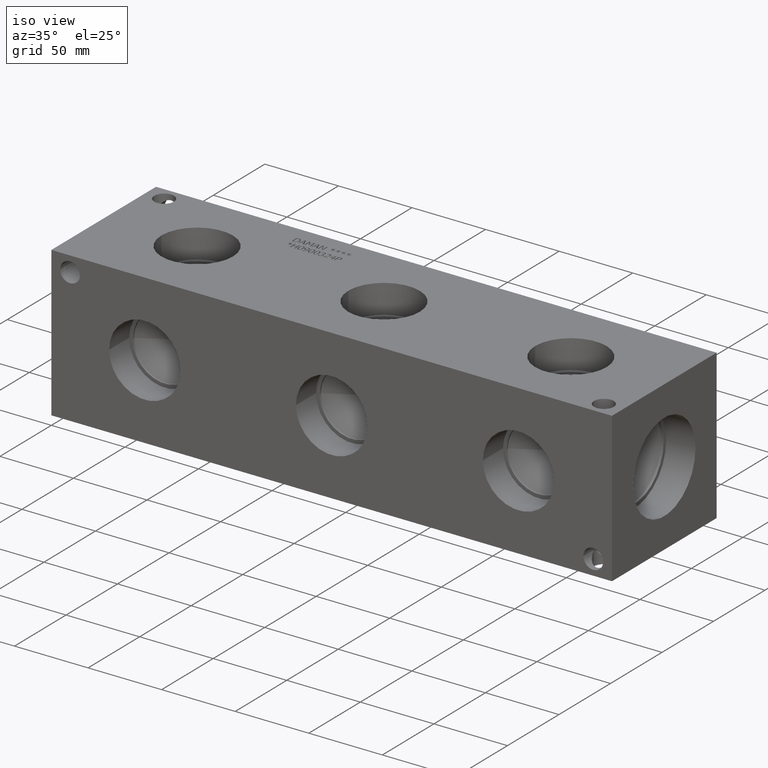
[diagram: clean part render]
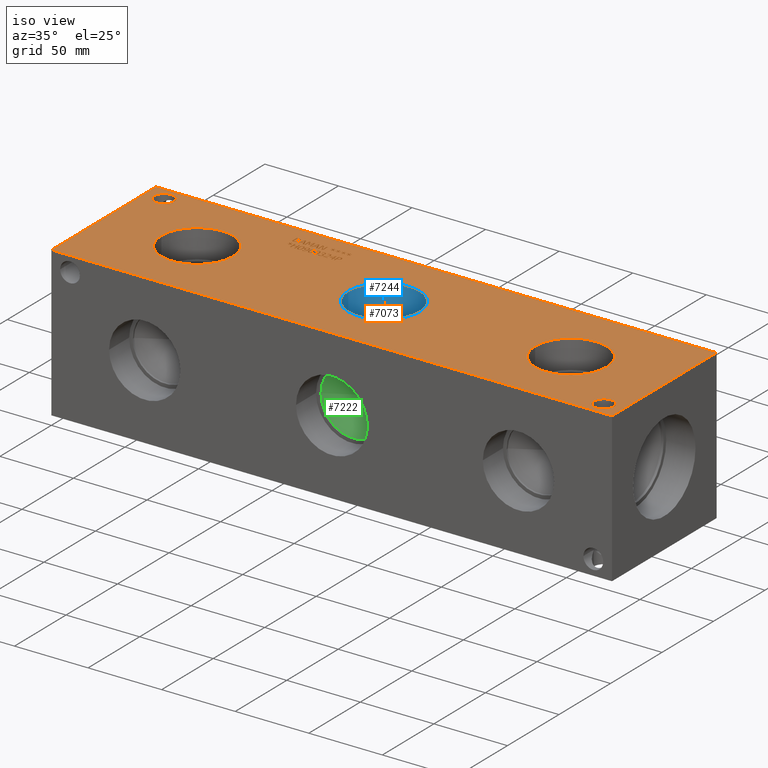
[diagram: same view with three faces highlighted in distinct colors, each labeled with its STEP entity id]
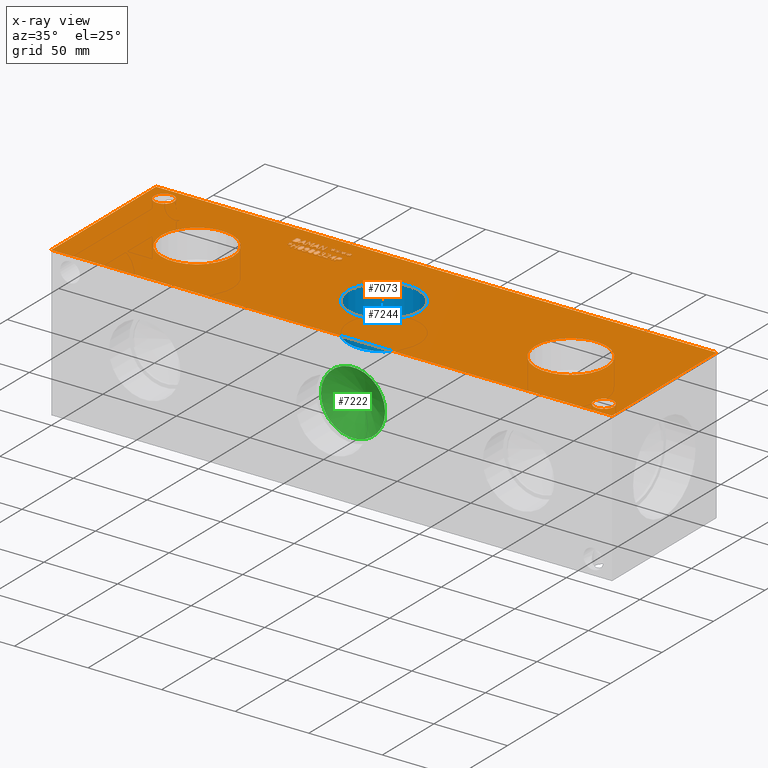
[diagram: x-ray of the same camera — body ghosted, the three highlighted faces saturated]
A machine part, iso view with three faces highlighted in distinct colors.
The next image is the same camera in x-ray (body ghosted, the three faces saturated) — at least one of them is partly hidden behind the body in this view.
Their STEP definitions:

[orange] entity #7073 — the highlighted planar face has unit normal (0, 0, 1).
#54=CIRCLE('',#7361,24.2824);
#55=CIRCLE('',#7362,24.2824);
#56=CIRCLE('',#7363,24.2824);
#57=CIRCLE('',#7364,24.2824);
#58=CIRCLE('',#7365,24.2824);
#59=CIRCLE('',#7366,24.2824);
#60=CIRCLE('',#7367,6.7437);
#61=CIRCLE('',#7368,6.7437);
#62=CIRCLE('',#7369,6.7437);
#63=CIRCLE('',#7370,6.7437);
#128=FACE_BOUND('',#951,.T.);
#129=FACE_BOUND('',#952,.T.);
#130=FACE_BOUND('',#953,.T.);
#131=FACE_BOUND('',#954,.T.);
#132=FACE_BOUND('',#955,.T.);
#133=FACE_BOUND('',#956,.T.);
#134=FACE_BOUND('',#957,.T.);
#135=FACE_BOUND('',#958,.T.);
#136=FACE_BOUND('',#959,.T.);
#137=FACE_BOUND('',#960,.T.);
#138=FACE_BOUND('',#961,.T.);
#139=FACE_BOUND('',#962,.T.);
#140=FACE_BOUND('',#963,.T.);
#141=FACE_BOUND('',#964,.T.);
#142=FACE_BOUND('',#965,.T.);
#143=FACE_BOUND('',#966,.T.);
#144=FACE_BOUND('',#967,.T.);
#145=FACE_BOUND('',#968,.T.);
#146=FACE_BOUND('',#969,.T.);
#147=FACE_BOUND('',#970,.T.);
#148=FACE_BOUND('',#971,.T.);
#149=FACE_BOUND('',#972,.T.);
#150=FACE_BOUND('',#973,.T.);
#151=FACE_BOUND('',#974,.T.);
#252=PLANE('',#7360);
#578=FACE_OUTER_BOUND('',#950,.T.);
#950=EDGE_LOOP('',(#5302,#5303,#5304,#5305));
#951=EDGE_LOOP('',(#5306,#5307,#5308,#5309,#5310,#5311,#5312,#5313,#5314));
#952=EDGE_LOOP('',(#5315,#5316,#5317,#5318,#5319,#5320,#5321,#5322,#5323,
#5324,#5325));
#953=EDGE_LOOP('',(#5326,#5327,#5328,#5329,#5330,#5331,#5332,#5333,#5334,
#5335,#5336,#5337,#5338,#5339,#5340,#5341,#5342,#5343,#5344,#5345,#5346,
#5347,#5348,#5349,#5350,#5351,#5352));
#954=EDGE_LOOP('',(#5353,#5354,#5355,#5356));
#955=EDGE_LOOP('',(#5357,#5358,#5359,#5360));
#956=EDGE_LOOP('',(#5361,#5362,#5363,#5364,#5365,#5366,#5367,#5368,#5369,
#5370,#5371,#5372,#5373,#5374));
#957=EDGE_LOOP('',(#5375,#5376,#5377,#5378));
#958=EDGE_LOOP('',(#5379,#5380,#5381,#5382,#5383,#5384,#5385,#5386,#5387,
#5388,#5389,#5390,#5391,#5392,#5393,#5394,#5395,#5396));
#959=EDGE_LOOP('',(#5397,#5398,#5399,#5400,#5401,#5402,#5403,#5404,#5405,
#5406,#5407,#5408));
#960=EDGE_LOOP('',(#5409,#5410,#5411,#5412,#5413,#5414,#5415,#5416,#5417,
#5418,#5419,#5420,#5421,#5422,#5423,#5424,#5425));
#961=EDGE_LOOP('',(#5426,#5427));
#962=EDGE_LOOP('',(#5428,#5429));
#963=EDGE_LOOP('',(#5430,#5431));
#964=EDGE_LOOP('',(#5432,#5433));
#965=EDGE_LOOP('',(#5434,#5435));
#966=EDGE_LOOP('',(#5436,#5437,#5438,#5439,#5440,#5441,#5442,#5443,#5444,
#5445,#5446,#5447,#5448,#5449,#5450,#5451,#5452,#5453));
#967=EDGE_LOOP('',(#5454,#5455,#5456,#5457,#5458,#5459,#5460,#5461,#5462,
#5463,#5464,#5465,#5466,#5467,#5468,#5469,#5470,#5471));
#968=EDGE_LOOP('',(#5472,#5473,#5474,#5475,#5476,#5477,#5478,#5479,#5480,
#5481));
#969=EDGE_LOOP('',(#5482,#5483,#5484,#5485,#5486,#5487,#5488,#5489));
#970=EDGE_LOOP('',(#5490,#5491,#5492,#5493,#5494,#5495,#5496));
#971=EDGE_LOOP('',(#5497,#5498,#5499,#5500,#5501,#5502,#5503,#5504));
#972=EDGE_LOOP('',(#5505,#5506,#5507,#5508,#5509,#5510,#5511,#5512,#5513,
#5514,#5515,#5516,#5517));
#973=EDGE_LOOP('',(#5518,#5519,#5520,#5521,#5522,#5523,#5524,#5525,#5526,
#5527,#5528,#5529,#5530,#5531,#5532,#5533,#5534,#5535));
#974=EDGE_LOOP('',(#5536,#5537,#5538,#5539,#5540,#5541,#5542,#5543,#5544,
#5545,#5546,#5547,#5548,#5549,#5550,#5551,#5552,#5553));
#1207=LINE('',#9163,#1925);
#1210=LINE('',#9169,#1928);
#1213=LINE('',#9175,#1931);
#1216=LINE('',#9181,#1934);
#1219=LINE('',#9187,#1937);
#1232=LINE('',#9248,#1950);
#1236=LINE('',#9256,#1954);
#1239=LINE('',#9262,#1957);
#1242=LINE('',#9268,#1960);
#1245=LINE('',#9274,#1963);
#1248=LINE('',#9280,#1966);
#1251=LINE('',#9286,#1969);
#1254=LINE('',#9292,#1972);
#1257=LINE('',#9298,#1975);
#1260=LINE('',#9304,#1978);
#1263=LINE('',#9309,#1981);
#1269=LINE('',#9374,#1987);
#1272=LINE('',#9380,#1990);
#1275=LINE('',#9386,#1993);
#1283=LINE('',#9487,#2001);
#1286=LINE('',#9493,#2004);
#1294=LINE('',#9594,#2012);
#1301=LINE('',#9676,#2019);
#1304=LINE('',#9682,#2022);
#1345=LINE('',#10413,#2063);
#1348=LINE('',#10419,#2066);
#1369=LINE('',#10786,#2087);
#1373=LINE('',#10794,#2091);
#1376=LINE('',#10800,#2094);
#1379=LINE('',#10806,#2097);
#1382=LINE('',#10812,#2100);
#1385=LINE('',#10818,#2103);
#1388=LINE('',#10824,#2106);
#1391=LINE('',#10830,#2109);
#1394=LINE('',#10836,#2112);
#1397=LINE('',#10842,#2115);
#1400=LINE('',#10848,#2118);
#1403=LINE('',#10854,#2121);
#1406=LINE('',#10860,#2124);
#1409=LINE('',#10866,#2127);
#1412=LINE('',#10872,#2130);
#1415=LINE('',#10878,#2133);
#1418=LINE('',#10884,#2136);
#1421=LINE('',#10889,#2139);
#1423=LINE('',#10895,#2141);
#1427=LINE('',#10903,#2145);
#1430=LINE('',#10909,#2148);
#1433=LINE('',#10915,#2151);
#1436=LINE('',#10921,#2154);
#1439=LINE('',#10927,#2157);
#1442=LINE('',#10933,#2160);
#1445=LINE('',#10939,#2163);
#1448=LINE('',#10945,#2166);
#1451=LINE('',#10951,#2169);
#1454=LINE('',#10957,#2172);
#1457=LINE('',#10962,#2175);
#1459=LINE('',#10968,#2177);
#1463=LINE('',#10976,#2181);
#1471=LINE('',#11077,#2189);
#1474=LINE('',#11083,#2192);
#1483=LINE('',#11203,#2201);
#1486=LINE('',#11208,#2204);
#1488=LINE('',#11214,#2206);
#1489=LINE('',#11216,#2207);
#1490=LINE('',#11218,#2208);
#1491=LINE('',#11219,#2209);
#1492=LINE('',#11242,#2210);
#1493=LINE('',#11244,#2211);
#1494=LINE('',#11246,#2212);
#1495=LINE('',#11248,#2213);
#1496=LINE('',#11250,#2214);
#1497=LINE('',#11252,#2215);
#1498=LINE('',#11254,#2216);
#1499=LINE('',#11256,#2217);
#1500=LINE('',#11258,#2218);
#1501=LINE('',#11260,#2219);
#1502=LINE('',#11262,#2220);
#1503=LINE('',#11264,#2221);
#1504=LINE('',#11266,#2222);
#1505=LINE('',#11268,#2223);
#1506=LINE('',#11270,#2224);
#1507=LINE('',#11272,#2225);
#1508=LINE('',#11274,#2226);
#1509=LINE('',#11275,#2227);
#1510=LINE('',#11278,#2228);
#1511=LINE('',#11280,#2229);
#1512=LINE('',#11282,#2230);
#1513=LINE('',#11284,#2231);
#1514=LINE('',#11286,#2232);
#1515=LINE('',#11288,#2233);
#1516=LINE('',#11290,#2234);
#1517=LINE('',#11292,#2235);
#1518=LINE('',#11294,#2236);
#1519=LINE('',#11296,#2237);
#1520=LINE('',#11298,#2238);
#1521=LINE('',#11300,#2239);
#1522=LINE('',#11302,#2240);
#1523=LINE('',#11304,#2241);
#1524=LINE('',#11306,#2242);
#1525=LINE('',#11308,#2243);
#1526=LINE('',#11310,#2244);
#1527=LINE('',#11311,#2245);
#1528=LINE('',#11314,#2246);
#1529=LINE('',#11316,#2247);
#1530=LINE('',#11318,#2248);
#1531=LINE('',#11320,#2249);
#1532=LINE('',#11322,#2250);
#1533=LINE('',#11324,#2251);
#1534=LINE('',#11326,#2252);
#1535=LINE('',#11328,#2253);
#1536=LINE('',#11330,#2254);
#1537=LINE('',#11331,#2255);
#1538=LINE('',#11334,#2256);
#1539=LINE('',#11336,#2257);
#1540=LINE('',#11338,#2258);
#1541=LINE('',#11340,#2259);
#1542=LINE('',#11342,#2260);
#1543=LINE('',#11344,#2261);
#1544=LINE('',#11346,#2262);
#1545=LINE('',#11347,#2263);
#1546=LINE('',#11365,#2264);
#1547=LINE('',#11367,#2265);
#1548=LINE('',#11369,#2266);
#1549=LINE('',#11376,#2267);
#1550=LINE('',#11378,#2268);
#1551=LINE('',#11380,#2269);
#1552=LINE('',#11382,#2270);
#1553=LINE('',#11384,#2271);
#1554=LINE('',#11386,#2272);
#1555=LINE('',#11388,#2273);
#1556=LINE('',#11389,#2274);
#1557=LINE('',#11392,#2275);
#1558=LINE('',#11394,#2276);
#1559=LINE('',#11396,#2277);
#1560=LINE('',#11398,#2278);
#1561=LINE('',#11400,#2279);
#1562=LINE('',#11402,#2280);
#1563=LINE('',#11404,#2281);
#1564=LINE('',#11406,#2282);
#1565=LINE('',#11408,#2283);
#1566=LINE('',#11410,#2284);
#1567=LINE('',#11412,#2285);
#1568=LINE('',#11414,#2286);
#1569=LINE('',#11415,#2287);
#1570=LINE('',#11418,#2288);
#1571=LINE('',#11420,#2289);
#1572=LINE('',#11422,#2290);
#1573=LINE('',#11424,#2291);
#1574=LINE('',#11426,#2292);
#1575=LINE('',#11428,#2293);
#1576=LINE('',#11430,#2294);
#1577=LINE('',#11432,#2295);
#1578=LINE('',#11434,#2296);
#1579=LINE('',#11436,#2297);
#1580=LINE('',#11438,#2298);
#1581=LINE('',#11440,#2299);
#1582=LINE('',#11442,#2300);
#1583=LINE('',#11444,#2301);
#1584=LINE('',#11446,#2302);
#1585=LINE('',#11448,#2303);
#1586=LINE('',#11450,#2304);
#1587=LINE('',#11451,#2305);
#1588=LINE('',#11454,#2306);
#1589=LINE('',#11456,#2307);
#1590=LINE('',#11458,#2308);
#1591=LINE('',#11460,#2309);
#1592=LINE('',#11462,#2310);
#1593=LINE('',#11464,#2311);
#1594=LINE('',#11466,#2312);
#1595=LINE('',#11468,#2313);
#1596=LINE('',#11470,#2314);
#1597=LINE('',#11472,#2315);
#1598=LINE('',#11474,#2316);
#1599=LINE('',#11476,#2317);
#1600=LINE('',#11478,#2318);
#1601=LINE('',#11480,#2319);
#1602=LINE('',#11482,#2320);
#1603=LINE('',#11484,#2321);
#1604=LINE('',#11486,#2322);
#1605=LINE('',#11487,#2323);
#1925=VECTOR('',#7649,10.);
#1928=VECTOR('',#7654,10.);
#1931=VECTOR('',#7659,10.);
#1934=VECTOR('',#7664,10.);
#1937=VECTOR('',#7669,10.);
#1950=VECTOR('',#7692,10.);
#1954=VECTOR('',#7698,10.);
#1957=VECTOR('',#7703,10.);
#1960=VECTOR('',#7708,10.);
#1963=VECTOR('',#7713,10.);
#1966=VECTOR('',#7718,10.);
#1969=VECTOR('',#7723,10.);
#1972=VECTOR('',#7728,10.);
#1975=VECTOR('',#7733,10.);
#1978=VECTOR('',#7738,10.);
#1981=VECTOR('',#7743,10.);
#1987=VECTOR('',#7753,10.);
#1990=VECTOR('',#7758,10.);
#1993=VECTOR('',#7763,10.);
#2001=VECTOR('',#7773,10.);
#2004=VECTOR('',#7778,10.);
#2012=VECTOR('',#7788,10.);
#2019=VECTOR('',#7797,10.);
#2022=VECTOR('',#7802,10.);
#2063=VECTOR('',#7851,10.);
#2066=VECTOR('',#7856,10.);
#2087=VECTOR('',#7883,10.);
#2091=VECTOR('',#7889,10.);
#2094=VECTOR('',#7894,10.);
#2097=VECTOR('',#7899,10.);
#2100=VECTOR('',#7904,10.);
#2103=VECTOR('',#7909,10.);
#2106=VECTOR('',#7914,10.);
#2109=VECTOR('',#7919,10.);
#2112=VECTOR('',#7924,10.);
#2115=VECTOR('',#7929,10.);
#2118=VECTOR('',#7934,10.);
#2121=VECTOR('',#7939,10.);
#2124=VECTOR('',#7944,10.);
#2127=VECTOR('',#7949,10.);
#2130=VECTOR('',#7954,10.);
#2133=VECTOR('',#7959,10.);
#2136=VECTOR('',#7964,10.);
#2139=VECTOR('',#7969,10.);
#2141=VECTOR('',#7975,10.);
#2145=VECTOR('',#7981,10.);
#2148=VECTOR('',#7986,10.);
#2151=VECTOR('',#7991,10.);
#2154=VECTOR('',#7996,10.);
#2157=VECTOR('',#8001,10.);
#2160=VECTOR('',#8006,10.);
#2163=VECTOR('',#8011,10.);
#2166=VECTOR('',#8016,10.);
#2169=VECTOR('',#8021,10.);
#2172=VECTOR('',#8026,10.);
#2175=VECTOR('',#8031,10.);
#2177=VECTOR('',#8037,10.);
#2181=VECTOR('',#8043,10.);
#2189=VECTOR('',#8053,10.);
#2192=VECTOR('',#8058,10.);
#2201=VECTOR('',#8069,10.);
#2204=VECTOR('',#8074,10.);
#2206=VECTOR('',#8080,10.);
#2207=VECTOR('',#8081,10.);
#2208=VECTOR('',#8082,10.);
#2209=VECTOR('',#8083,10.);
#2210=VECTOR('',#8104,10.);
#2211=VECTOR('',#8105,10.);
#2212=VECTOR('',#8106,10.);
#2213=VECTOR('',#8107,10.);
#2214=VECTOR('',#8108,10.);
#2215=VECTOR('',#8109,10.);
#2216=VECTOR('',#8110,10.);
#2217=VECTOR('',#8111,10.);
#2218=VECTOR('',#8112,10.);
#2219=VECTOR('',#8113,10.);
#2220=VECTOR('',#8114,10.);
#2221=VECTOR('',#8115,10.);
#2222=VECTOR('',#8116,10.);
#2223=VECTOR('',#8117,10.);
#2224=VECTOR('',#8118,10.);
#2225=VECTOR('',#8119,10.);
#2226=VECTOR('',#8120,10.);
#2227=VECTOR('',#8121,10.);
#2228=VECTOR('',#8122,10.);
#2229=VECTOR('',#8123,10.);
#2230=VECTOR('',#8124,10.);
#2231=VECTOR('',#8125,10.);
#2232=VECTOR('',#8126,10.);
#2233=VECTOR('',#8127,10.);
#2234=VECTOR('',#8128,10.);
#2235=VECTOR('',#8129,10.);
#2236=VECTOR('',#8130,10.);
#2237=VECTOR('',#8131,10.);
#2238=VECTOR('',#8132,10.);
#2239=VECTOR('',#8133,10.);
#2240=VECTOR('',#8134,10.);
#2241=VECTOR('',#8135,10.);
#2242=VECTOR('',#8136,10.);
#2243=VECTOR('',#8137,10.);
#2244=VECTOR('',#8138,10.);
#2245=VECTOR('',#8139,10.);
#2246=VECTOR('',#8140,10.);
#2247=VECTOR('',#8141,10.);
#2248=VECTOR('',#8142,10.);
#2249=VECTOR('',#8143,10.);
#2250=VECTOR('',#8144,10.);
#2251=VECTOR('',#8145,10.);
#2252=VECTOR('',#8146,10.);
#2253=VECTOR('',#8147,10.);
#2254=VECTOR('',#8148,10.);
#2255=VECTOR('',#8149,10.);
#2256=VECTOR('',#8150,10.);
#2257=VECTOR('',#8151,10.);
#2258=VECTOR('',#8152,10.);
#2259=VECTOR('',#8153,10.);
#2260=VECTOR('',#8154,10.);
#2261=VECTOR('',#8155,10.);
#2262=VECTOR('',#8156,10.);
#2263=VECTOR('',#8157,10.);
#2264=VECTOR('',#8158,10.);
#2265=VECTOR('',#8159,10.);
#2266=VECTOR('',#8160,10.);
#2267=VECTOR('',#8161,10.);
#2268=VECTOR('',#8162,10.);
#2269=VECTOR('',#8163,10.);
#2270=VECTOR('',#8164,10.);
#2271=VECTOR('',#8165,10.);
#2272=VECTOR('',#8166,10.);
#2273=VECTOR('',#8167,10.);
#2274=VECTOR('',#8168,10.);
#2275=VECTOR('',#8169,10.);
#2276=VECTOR('',#8170,10.);
#2277=VECTOR('',#8171,10.);
#2278=VECTOR('',#8172,10.);
#2279=VECTOR('',#8173,10.);
#2280=VECTOR('',#8174,10.);
#2281=VECTOR('',#8175,10.);
#2282=VECTOR('',#8176,10.);
#2283=VECTOR('',#8177,10.);
#2284=VECTOR('',#8178,10.);
#2285=VECTOR('',#8179,10.);
#2286=VECTOR('',#8180,10.);
#2287=VECTOR('',#8181,10.);
#2288=VECTOR('',#8182,10.);
#2289=VECTOR('',#8183,10.);
#2290=VECTOR('',#8184,10.);
#2291=VECTOR('',#8185,10.);
#2292=VECTOR('',#8186,10.);
#2293=VECTOR('',#8187,10.);
#2294=VECTOR('',#8188,10.);
#2295=VECTOR('',#8189,10.);
#2296=VECTOR('',#8190,10.);
#2297=VECTOR('',#8191,10.);
#2298=VECTOR('',#8192,10.);
#2299=VECTOR('',#8193,10.);
#2300=VECTOR('',#8194,10.);
#2301=VECTOR('',#8195,10.);
#2302=VECTOR('',#8196,10.);
#2303=VECTOR('',#8197,10.);
#2304=VECTOR('',#8198,10.);
#2305=VECTOR('',#8199,10.);
#2306=VECTOR('',#8200,10.);
#2307=VECTOR('',#8201,10.);
#2308=VECTOR('',#8202,10.);
#2309=VECTOR('',#8203,10.);
#2310=VECTOR('',#8204,10.);
#2311=VECTOR('',#8205,10.);
#2312=VECTOR('',#8206,10.);
#2313=VECTOR('',#8207,10.);
#2314=VECTOR('',#8208,10.);
#2315=VECTOR('',#8209,10.);
#2316=VECTOR('',#8210,10.);
#2317=VECTOR('',#8211,10.);
#2318=VECTOR('',#8212,10.);
#2319=VECTOR('',#8213,10.);
#2320=VECTOR('',#8214,10.);
#2321=VECTOR('',#8215,10.);
#2322=VECTOR('',#8216,10.);
#2323=VECTOR('',#8217,10.);
#2635=B_SPLINE_CURVE_WITH_KNOTS('',2,(#9130,#9131,#9132,#9133),
 .UNSPECIFIED.,.F.,.F.,(3,1,3),(0.,1.,2.),.UNSPECIFIED.);
#2637=B_SPLINE_CURVE_WITH_KNOTS('',2,(#9151,#9152,#9153,#9154),
 .UNSPECIFIED.,.F.,.F.,(3,1,3),(0.,1.,2.),.UNSPECIFIED.);
#2639=B_SPLINE_CURVE_WITH_KNOTS('',2,(#9200,#9201,#9202,#9203),
 .UNSPECIFIED.,.F.,.F.,(3,1,3),(0.,1.,2.),.UNSPECIFIED.);
#2641=B_SPLINE_CURVE_WITH_KNOTS('',2,(#9218,#9219,#9220,#9221),
 .UNSPECIFIED.,.F.,.F.,(3,1,3),(0.,1.,2.),.UNSPECIFIED.);
#2643=B_SPLINE_CURVE_WITH_KNOTS('',2,(#9322,#9323,#9324,#9325),
 .UNSPECIFIED.,.F.,.F.,(3,1,3),(0.,1.,2.),.UNSPECIFIED.);
#2645=B_SPLINE_CURVE_WITH_KNOTS('',2,(#9343,#9344,#9345,#9346),
 .UNSPECIFIED.,.F.,.F.,(3,1,3),(0.,1.,2.),.UNSPECIFIED.);
#2647=B_SPLINE_CURVE_WITH_KNOTS('',2,(#9362,#9363,#9364,#9365),
 .UNSPECIFIED.,.F.,.F.,(3,1,3),(0.,1.,2.),.UNSPECIFIED.);
#2649=B_SPLINE_CURVE_WITH_KNOTS('',2,(#9399,#9400,#9401,#9402),
 .UNSPECIFIED.,.F.,.F.,(3,1,3),(0.,1.,2.),.UNSPECIFIED.);
#2651=B_SPLINE_CURVE_WITH_KNOTS('',2,(#9418,#9419,#9420,#9421),
 .UNSPECIFIED.,.F.,.F.,(3,1,3),(0.,1.,2.),.UNSPECIFIED.);
#2653=B_SPLINE_CURVE_WITH_KNOTS('',2,(#9437,#9438,#9439,#9440),
 .UNSPECIFIED.,.F.,.F.,(3,1,3),(0.,1.,2.),.UNSPECIFIED.);
#2655=B_SPLINE_CURVE_WITH_KNOTS('',2,(#9456,#9457,#9458,#9459),
 .UNSPECIFIED.,.F.,.F.,(3,1,3),(0.,1.,2.),.UNSPECIFIED.);
#2657=B_SPLINE_CURVE_WITH_KNOTS('',2,(#9475,#9476,#9477,#9478),
 .UNSPECIFIED.,.F.,.F.,(3,1,3),(0.,1.,2.),.UNSPECIFIED.);
#2659=B_SPLINE_CURVE_WITH_KNOTS('',2,(#9506,#9507,#9508,#9509),
 .UNSPECIFIED.,.F.,.F.,(3,1,3),(0.,1.,2.),.UNSPECIFIED.);
#2661=B_SPLINE_CURVE_WITH_KNOTS('',2,(#9525,#9526,#9527,#9528),
 .UNSPECIFIED.,.F.,.F.,(3,1,3),(0.,1.,2.),.UNSPECIFIED.);
#2663=B_SPLINE_CURVE_WITH_KNOTS('',2,(#9544,#9545,#9546,#9547),
 .UNSPECIFIED.,.F.,.F.,(3,1,3),(0.,1.,2.),.UNSPECIFIED.);
#2665=B_SPLINE_CURVE_WITH_KNOTS('',2,(#9563,#9564,#9565,#9566),
 .UNSPECIFIED.,.F.,.F.,(3,1,3),(0.,1.,2.),.UNSPECIFIED.);
#2667=B_SPLINE_CURVE_WITH_KNOTS('',2,(#9582,#9583,#9584,#9585),
 .UNSPECIFIED.,.F.,.F.,(3,1,3),(0.,1.,2.),.UNSPECIFIED.);
#2669=B_SPLINE_CURVE_WITH_KNOTS('',2,(#9607,#9608,#9609,#9610),
 .UNSPECIFIED.,.F.,.F.,(3,1,3),(0.,1.,2.),.UNSPECIFIED.);
#2671=B_SPLINE_CURVE_WITH_KNOTS('',2,(#9626,#9627,#9628,#9629),
 .UNSPECIFIED.,.F.,.F.,(3,1,3),(0.,1.,2.),.UNSPECIFIED.);
#2673=B_SPLINE_CURVE_WITH_KNOTS('',2,(#9645,#9646,#9647,#9648),
 .UNSPECIFIED.,.F.,.F.,(3,1,3),(0.,1.,2.),.UNSPECIFIED.);
#2675=B_SPLINE_CURVE_WITH_KNOTS('',2,(#9664,#9665,#9666,#9667),
 .UNSPECIFIED.,.F.,.F.,(3,1,3),(0.,1.,2.),.UNSPECIFIED.);
#2677=B_SPLINE_CURVE_WITH_KNOTS('',2,(#9695,#9696,#9697,#9698),
 .UNSPECIFIED.,.F.,.F.,(3,1,3),(0.,1.,2.),.UNSPECIFIED.);
#2679=B_SPLINE_CURVE_WITH_KNOTS('',2,(#9713,#9714,#9715,#9716),
 .UNSPECIFIED.,.F.,.F.,(3,1,3),(0.,1.,2.),.UNSPECIFIED.);
#2697=B_SPLINE_CURVE_WITH_KNOTS('',2,(#9884,#9885,#9886,#9887),
 .UNSPECIFIED.,.F.,.F.,(3,1,3),(0.,1.,2.),.UNSPECIFIED.);
#2699=B_SPLINE_CURVE_WITH_KNOTS('',2,(#9905,#9906,#9907,#9908),
 .UNSPECIFIED.,.F.,.F.,(3,1,3),(0.,1.,2.),.UNSPECIFIED.);
#2701=B_SPLINE_CURVE_WITH_KNOTS('',2,(#9924,#9925,#9926,#9927),
 .UNSPECIFIED.,.F.,.F.,(3,1,3),(0.,1.,2.),.UNSPECIFIED.);
#2703=B_SPLINE_CURVE_WITH_KNOTS('',2,(#9942,#9943,#9944,#9945),
 .UNSPECIFIED.,.F.,.F.,(3,1,3),(0.,1.,2.),.UNSPECIFIED.);
#2721=B_SPLINE_CURVE_WITH_KNOTS('',2,(#10113,#10114,#10115,#10116),
 .UNSPECIFIED.,.F.,.F.,(3,1,3),(0.,1.,2.),.UNSPECIFIED.);
#2723=B_SPLINE_CURVE_WITH_KNOTS('',2,(#10134,#10135,#10136,#10137),
 .UNSPECIFIED.,.F.,.F.,(3,1,3),(0.,1.,2.),.UNSPECIFIED.);
#2725=B_SPLINE_CURVE_WITH_KNOTS('',2,(#10153,#10154,#10155,#10156),
 .UNSPECIFIED.,.F.,.F.,(3,1,3),(0.,1.,2.),.UNSPECIFIED.);
#2727=B_SPLINE_CURVE_WITH_KNOTS('',2,(#10171,#10172,#10173,#10174),
 .UNSPECIFIED.,.F.,.F.,(3,1,3),(0.,1.,2.),.UNSPECIFIED.);
#2743=B_SPLINE_CURVE_WITH_KNOTS('',2,(#10323,#10324,#10325,#10326),
 .UNSPECIFIED.,.F.,.F.,(3,1,3),(0.,1.,2.),.UNSPECIFIED.);
#2745=B_SPLINE_CURVE_WITH_KNOTS('',2,(#10344,#10345,#10346,#10347),
 .UNSPECIFIED.,.F.,.F.,(3,1,3),(0.,1.,2.),.UNSPECIFIED.);
#2747=B_SPLINE_CURVE_WITH_KNOTS('',2,(#10363,#10364,#10365,#10366),
 .UNSPECIFIED.,.F.,.F.,(3,1,3),(0.,1.,2.),.UNSPECIFIED.);
#2749=B_SPLINE_CURVE_WITH_KNOTS('',2,(#10382,#10383,#10384,#10385),
 .UNSPECIFIED.,.F.,.F.,(3,1,3),(0.,1.,2.),.UNSPECIFIED.);
#2751=B_SPLINE_CURVE_WITH_KNOTS('',2,(#10401,#10402,#10403,#10404),
 .UNSPECIFIED.,.F.,.F.,(3,1,3),(0.,1.,2.),.UNSPECIFIED.);
#2753=B_SPLINE_CURVE_WITH_KNOTS('',2,(#10432,#10433,#10434,#10435),
 .UNSPECIFIED.,.F.,.F.,(3,1,3),(0.,1.,2.),.UNSPECIFIED.);
#2755=B_SPLINE_CURVE_WITH_KNOTS('',2,(#10451,#10452,#10453,#10454),
 .UNSPECIFIED.,.F.,.F.,(3,1,3),(0.,1.,2.),.UNSPECIFIED.);
#2757=B_SPLINE_CURVE_WITH_KNOTS('',2,(#10470,#10471,#10472,#10473),
 .UNSPECIFIED.,.F.,.F.,(3,1,3),(0.,1.,2.),.UNSPECIFIED.);
#2759=B_SPLINE_CURVE_WITH_KNOTS('',2,(#10489,#10490,#10491,#10492),
 .UNSPECIFIED.,.F.,.F.,(3,1,3),(0.,1.,2.),.UNSPECIFIED.);
#2761=B_SPLINE_CURVE_WITH_KNOTS('',2,(#10508,#10509,#10510,#10511),
 .UNSPECIFIED.,.F.,.F.,(3,1,3),(0.,1.,2.),.UNSPECIFIED.);
#2763=B_SPLINE_CURVE_WITH_KNOTS('',2,(#10527,#10528,#10529,#10530),
 .UNSPECIFIED.,.F.,.F.,(3,1,3),(0.,1.,2.),.UNSPECIFIED.);
#2765=B_SPLINE_CURVE_WITH_KNOTS('',2,(#10545,#10546,#10547,#10548),
 .UNSPECIFIED.,.F.,.F.,(3,1,3),(0.,1.,2.),.UNSPECIFIED.);
#2783=B_SPLINE_CURVE_WITH_KNOTS('',2,(#10716,#10717,#10718,#10719),
 .UNSPECIFIED.,.F.,.F.,(3,1,3),(0.,1.,2.),.UNSPECIFIED.);
#2785=B_SPLINE_CURVE_WITH_KNOTS('',2,(#10737,#10738,#10739,#10740),
 .UNSPECIFIED.,.F.,.F.,(3,1,3),(0.,1.,2.),.UNSPECIFIED.);
#2787=B_SPLINE_CURVE_WITH_KNOTS('',2,(#10756,#10757,#10758,#10759),
 .UNSPECIFIED.,.F.,.F.,(3,1,3),(0.,1.,2.),.UNSPECIFIED.);
#2789=B_SPLINE_CURVE_WITH_KNOTS('',2,(#10774,#10775,#10776,#10777),
 .UNSPECIFIED.,.F.,.F.,(3,1,3),(0.,1.,2.),.UNSPECIFIED.);
#2791=B_SPLINE_CURVE_WITH_KNOTS('',2,(#10989,#10990,#10991,#10992),
 .UNSPECIFIED.,.F.,.F.,(3,1,3),(0.,1.,2.),.UNSPECIFIED.);
#2793=B_SPLINE_CURVE_WITH_KNOTS('',2,(#11008,#11009,#11010,#11011),
 .UNSPECIFIED.,.F.,.F.,(3,1,3),(0.,1.,2.),.UNSPECIFIED.);
#2795=B_SPLINE_CURVE_WITH_KNOTS('',2,(#11027,#11028,#11029,#11030),
 .UNSPECIFIED.,.F.,.F.,(3,1,3),(0.,1.,2.),.UNSPECIFIED.);
#2797=B_SPLINE_CURVE_WITH_KNOTS('',2,(#11046,#11047,#11048,#11049),
 .UNSPECIFIED.,.F.,.F.,(3,1,3),(0.,1.,2.),.UNSPECIFIED.);
#2799=B_SPLINE_CURVE_WITH_KNOTS('',2,(#11065,#11066,#11067,#11068),
 .UNSPECIFIED.,.F.,.F.,(3,1,3),(0.,1.,2.),.UNSPECIFIED.);
#2801=B_SPLINE_CURVE_WITH_KNOTS('',2,(#11096,#11097,#11098,#11099),
 .UNSPECIFIED.,.F.,.F.,(3,1,3),(0.,1.,2.),.UNSPECIFIED.);
#2803=B_SPLINE_CURVE_WITH_KNOTS('',2,(#11115,#11116,#11117,#11118),
 .UNSPECIFIED.,.F.,.F.,(3,1,3),(0.,1.,2.),.UNSPECIFIED.);
#2805=B_SPLINE_CURVE_WITH_KNOTS('',2,(#11134,#11135,#11136,#11137),
 .UNSPECIFIED.,.F.,.F.,(3,1,3),(0.,1.,2.),.UNSPECIFIED.);
#2807=B_SPLINE_CURVE_WITH_KNOTS('',2,(#11153,#11154,#11155,#11156),
 .UNSPECIFIED.,.F.,.F.,(3,1,3),(0.,1.,2.),.UNSPECIFIED.);
#2809=B_SPLINE_CURVE_WITH_KNOTS('',2,(#11172,#11173,#11174,#11175),
 .UNSPECIFIED.,.F.,.F.,(3,1,3),(0.,1.,2.),.UNSPECIFIED.);
#2811=B_SPLINE_CURVE_WITH_KNOTS('',2,(#11191,#11192,#11193,#11194),
 .UNSPECIFIED.,.F.,.F.,(3,1,3),(0.,1.,2.),.UNSPECIFIED.);
#2813=B_SPLINE_CURVE_WITH_KNOTS('',2,(#11350,#11351,#11352,#11353),
 .UNSPECIFIED.,.F.,.F.,(3,1,3),(0.,1.,2.),.UNSPECIFIED.);
#2814=B_SPLINE_CURVE_WITH_KNOTS('',2,(#11355,#11356,#11357,#11358),
 .UNSPECIFIED.,.F.,.F.,(3,1,3),(0.,1.,2.),.UNSPECIFIED.);
#2815=B_SPLINE_CURVE_WITH_KNOTS('',2,(#11360,#11361,#11362,#11363),
 .UNSPECIFIED.,.F.,.F.,(3,1,3),(0.,1.,2.),.UNSPECIFIED.);
#2816=B_SPLINE_CURVE_WITH_KNOTS('',2,(#11370,#11371,#11372,#11373),
 .UNSPECIFIED.,.F.,.F.,(3,1,3),(0.,1.,2.),.UNSPECIFIED.);
#2843=VERTEX_POINT('',#9128);
#2844=VERTEX_POINT('',#9129);
#2847=VERTEX_POINT('',#9150);
#2849=VERTEX_POINT('',#9162);
#2851=VERTEX_POINT('',#9168);
#2853=VERTEX_POINT('',#9174);
#2855=VERTEX_POINT('',#9180);
#2857=VERTEX_POINT('',#9186);
#2859=VERTEX_POINT('',#9199);
#2867=VERTEX_POINT('',#9246);
#2868=VERTEX_POINT('',#9247);
#2871=VERTEX_POINT('',#9255);
#2873=VERTEX_POINT('',#9261);
#2875=VERTEX_POINT('',#9267);
#2877=VERTEX_POINT('',#9273);
#2879=VERTEX_POINT('',#9279);
#2881=VERTEX_POINT('',#9285);
#2883=VERTEX_POINT('',#9291);
#2885=VERTEX_POINT('',#9297);
#2887=VERTEX_POINT('',#9303);
#2889=VERTEX_POINT('',#9320);
#2890=VERTEX_POINT('',#9321);
#2893=VERTEX_POINT('',#9342);
#2895=VERTEX_POINT('',#9361);
#2897=VERTEX_POINT('',#9373);
#2899=VERTEX_POINT('',#9379);
#2901=VERTEX_POINT('',#9385);
#2903=VERTEX_POINT('',#9398);
#2905=VERTEX_POINT('',#9417);
#2907=VERTEX_POINT('',#9436);
#2909=VERTEX_POINT('',#9455);
#2911=VERTEX_POINT('',#9474);
#2913=VERTEX_POINT('',#9486);
#2915=VERTEX_POINT('',#9492);
#2917=VERTEX_POINT('',#9505);
#2919=VERTEX_POINT('',#9524);
#2921=VERTEX_POINT('',#9543);
#2923=VERTEX_POINT('',#9562);
#2925=VERTEX_POINT('',#9581);
#2927=VERTEX_POINT('',#9593);
#2929=VERTEX_POINT('',#9606);
#2931=VERTEX_POINT('',#9625);
#2933=VERTEX_POINT('',#9644);
#2935=VERTEX_POINT('',#9663);
#2937=VERTEX_POINT('',#9675);
#2939=VERTEX_POINT('',#9681);
#2941=VERTEX_POINT('',#9694);
#2959=VERTEX_POINT('',#9882);
#2960=VERTEX_POINT('',#9883);
#2963=VERTEX_POINT('',#9904);
#2965=VERTEX_POINT('',#9923);
#2983=VERTEX_POINT('',#10111);
#2984=VERTEX_POINT('',#10112);
#2987=VERTEX_POINT('',#10133);
#2989=VERTEX_POINT('',#10152);
#3005=VERTEX_POINT('',#10321);
#3006=VERTEX_POINT('',#10322);
#3009=VERTEX_POINT('',#10343);
#3011=VERTEX_POINT('',#10362);
#3013=VERTEX_POINT('',#10381);
#3015=VERTEX_POINT('',#10400);
#3017=VERTEX_POINT('',#10412);
#3019=VERTEX_POINT('',#10418);
#3021=VERTEX_POINT('',#10431);
#3023=VERTEX_POINT('',#10450);
#3025=VERTEX_POINT('',#10469);
#3027=VERTEX_POINT('',#10488);
#3029=VERTEX_POINT('',#10507);
#3031=VERTEX_POINT('',#10526);
#3049=VERTEX_POINT('',#10714);
#3050=VERTEX_POINT('',#10715);
#3053=VERTEX_POINT('',#10736);
#3055=VERTEX_POINT('',#10755);
#3057=VERTEX_POINT('',#10784);
#3058=VERTEX_POINT('',#10785);
#3061=VERTEX_POINT('',#10793);
#3063=VERTEX_POINT('',#10799);
#3065=VERTEX_POINT('',#10805);
#3067=VERTEX_POINT('',#10811);
#3069=VERTEX_POINT('',#10817);
#3071=VERTEX_POINT('',#10823);
#3073=VERTEX_POINT('',#10829);
#3075=VERTEX_POINT('',#10835);
#3077=VERTEX_POINT('',#10841);
#3079=VERTEX_POINT('',#10847);
#3081=VERTEX_POINT('',#10853);
#3083=VERTEX_POINT('',#10859);
#3085=VERTEX_POINT('',#10865);
#3087=VERTEX_POINT('',#10871);
#3089=VERTEX_POINT('',#10877);
#3091=VERTEX_POINT('',#10883);
#3093=VERTEX_POINT('',#10893);
#3094=VERTEX_POINT('',#10894);
#3097=VERTEX_POINT('',#10902);
#3099=VERTEX_POINT('',#10908);
#3101=VERTEX_POINT('',#10914);
#3103=VERTEX_POINT('',#10920);
#3105=VERTEX_POINT('',#10926);
#3107=VERTEX_POINT('',#10932);
#3109=VERTEX_POINT('',#10938);
#3111=VERTEX_POINT('',#10944);
#3113=VERTEX_POINT('',#10950);
#3115=VERTEX_POINT('',#10956);
#3117=VERTEX_POINT('',#10966);
#3118=VERTEX_POINT('',#10967);
#3121=VERTEX_POINT('',#10975);
#3123=VERTEX_POINT('',#10988);
#3125=VERTEX_POINT('',#11007);
#3127=VERTEX_POINT('',#11026);
#3129=VERTEX_POINT('',#11045);
#3131=VERTEX_POINT('',#11064);
#3133=VERTEX_POINT('',#11076);
#3135=VERTEX_POINT('',#11082);
#3137=VERTEX_POINT('',#11095);
#3139=VERTEX_POINT('',#11114);
#3141=VERTEX_POINT('',#11133);
#3143=VERTEX_POINT('',#11152);
#3145=VERTEX_POINT('',#11171);
#3147=VERTEX_POINT('',#11190);
#3149=VERTEX_POINT('',#11202);
#3151=VERTEX_POINT('',#11212);
#3152=VERTEX_POINT('',#11213);
#3153=VERTEX_POINT('',#11215);
#3154=VERTEX_POINT('',#11217);
#3155=VERTEX_POINT('',#11220);
#3156=VERTEX_POINT('',#11221);
#3157=VERTEX_POINT('',#11224);
#3158=VERTEX_POINT('',#11225);
#3159=VERTEX_POINT('',#11228);
#3160=VERTEX_POINT('',#11229);
#3161=VERTEX_POINT('',#11232);
#3162=VERTEX_POINT('',#11233);
#3163=VERTEX_POINT('',#11236);
#3164=VERTEX_POINT('',#11237);
#3165=VERTEX_POINT('',#11240);
#3166=VERTEX_POINT('',#11241);
#3167=VERTEX_POINT('',#11243);
#3168=VERTEX_POINT('',#11245);
#3169=VERTEX_POINT('',#11247);
#3170=VERTEX_POINT('',#11249);
#3171=VERTEX_POINT('',#11251);
#3172=VERTEX_POINT('',#11253);
#3173=VERTEX_POINT('',#11255);
#3174=VERTEX_POINT('',#11257);
#3175=VERTEX_POINT('',#11259);
#3176=VERTEX_POINT('',#11261);
#3177=VERTEX_POINT('',#11263);
#3178=VERTEX_POINT('',#11265);
#3179=VERTEX_POINT('',#11267);
#3180=VERTEX_POINT('',#11269);
#3181=VERTEX_POINT('',#11271);
#3182=VERTEX_POINT('',#11273);
#3183=VERTEX_POINT('',#11276);
#3184=VERTEX_POINT('',#11277);
#3185=VERTEX_POINT('',#11279);
#3186=VERTEX_POINT('',#11281);
#3187=VERTEX_POINT('',#11283);
#3188=VERTEX_POINT('',#11285);
#3189=VERTEX_POINT('',#11287);
#3190=VERTEX_POINT('',#11289);
#3191=VERTEX_POINT('',#11291);
#3192=VERTEX_POINT('',#11293);
#3193=VERTEX_POINT('',#11295);
#3194=VERTEX_POINT('',#11297);
#3195=VERTEX_POINT('',#11299);
#3196=VERTEX_POINT('',#11301);
#3197=VERTEX_POINT('',#11303);
#3198=VERTEX_POINT('',#11305);
#3199=VERTEX_POINT('',#11307);
#3200=VERTEX_POINT('',#11309);
#3201=VERTEX_POINT('',#11312);
#3202=VERTEX_POINT('',#11313);
#3203=VERTEX_POINT('',#11315);
#3204=VERTEX_POINT('',#11317);
#3205=VERTEX_POINT('',#11319);
#3206=VERTEX_POINT('',#11321);
#3207=VERTEX_POINT('',#11323);
#3208=VERTEX_POINT('',#11325);
#3209=VERTEX_POINT('',#11327);
#3210=VERTEX_POINT('',#11329);
#3211=VERTEX_POINT('',#11332);
#3212=VERTEX_POINT('',#11333);
#3213=VERTEX_POINT('',#11335);
#3214=VERTEX_POINT('',#11337);
#3215=VERTEX_POINT('',#11339);
#3216=VERTEX_POINT('',#11341);
#3217=VERTEX_POINT('',#11343);
#3218=VERTEX_POINT('',#11345);
#3219=VERTEX_POINT('',#11348);
#3220=VERTEX_POINT('',#11349);
#3221=VERTEX_POINT('',#11354);
#3222=VERTEX_POINT('',#11359);
#3223=VERTEX_POINT('',#11364);
#3224=VERTEX_POINT('',#11366);
#3225=VERTEX_POINT('',#11368);
#3226=VERTEX_POINT('',#11374);
#3227=VERTEX_POINT('',#11375);
#3228=VERTEX_POINT('',#11377);
#3229=VERTEX_POINT('',#11379);
#3230=VERTEX_POINT('',#11381);
#3231=VERTEX_POINT('',#11383);
#3232=VERTEX_POINT('',#11385);
#3233=VERTEX_POINT('',#11387);
#3234=VERTEX_POINT('',#11390);
#3235=VERTEX_POINT('',#11391);
#3236=VERTEX_POINT('',#11393);
#3237=VERTEX_POINT('',#11395);
#3238=VERTEX_POINT('',#11397);
#3239=VERTEX_POINT('',#11399);
#3240=VERTEX_POINT('',#11401);
#3241=VERTEX_POINT('',#11403);
#3242=VERTEX_POINT('',#11405);
#3243=VERTEX_POINT('',#11407);
#3244=VERTEX_POINT('',#11409);
#3245=VERTEX_POINT('',#11411);
#3246=VERTEX_POINT('',#11413);
#3247=VERTEX_POINT('',#11416);
#3248=VERTEX_POINT('',#11417);
#3249=VERTEX_POINT('',#11419);
#3250=VERTEX_POINT('',#11421);
#3251=VERTEX_POINT('',#11423);
#3252=VERTEX_POINT('',#11425);
#3253=VERTEX_POINT('',#11427);
#3254=VERTEX_POINT('',#11429);
#3255=VERTEX_POINT('',#11431);
#3256=VERTEX_POINT('',#11433);
#3257=VERTEX_POINT('',#11435);
#3258=VERTEX_POINT('',#11437);
#3259=VERTEX_POINT('',#11439);
#3260=VERTEX_POINT('',#11441);
#3261=VERTEX_POINT('',#11443);
#3262=VERTEX_POINT('',#11445);
#3263=VERTEX_POINT('',#11447);
#3264=VERTEX_POINT('',#11449);
#3265=VERTEX_POINT('',#11452);
#3266=VERTEX_POINT('',#11453);
#3267=VERTEX_POINT('',#11455);
#3268=VERTEX_POINT('',#11457);
#3269=VERTEX_POINT('',#11459);
#3270=VERTEX_POINT('',#11461);
#3271=VERTEX_POINT('',#11463);
#3272=VERTEX_POINT('',#11465);
#3273=VERTEX_POINT('',#11467);
#3274=VERTEX_POINT('',#11469);
#3275=VERTEX_POINT('',#11471);
#3276=VERTEX_POINT('',#11473);
#3277=VERTEX_POINT('',#11475);
#3278=VERTEX_POINT('',#11477);
#3279=VERTEX_POINT('',#11479);
#3280=VERTEX_POINT('',#11481);
#3281=VERTEX_POINT('',#11483);
#3282=VERTEX_POINT('',#11485);
#3522=EDGE_CURVE('',#2843,#2844,#2635,.T.);
#3526=EDGE_CURVE('',#2847,#2843,#2637,.T.);
#3529=EDGE_CURVE('',#2849,#2847,#1207,.T.);
#3532=EDGE_CURVE('',#2851,#2849,#1210,.T.);
#3535=EDGE_CURVE('',#2853,#2851,#1213,.T.);
#3538=EDGE_CURVE('',#2855,#2853,#1216,.T.);
#3541=EDGE_CURVE('',#2857,#2855,#1219,.T.);
#3544=EDGE_CURVE('',#2859,#2857,#2639,.T.);
#3547=EDGE_CURVE('',#2844,#2859,#2641,.T.);
#3558=EDGE_CURVE('',#2867,#2868,#1232,.T.);
#3562=EDGE_CURVE('',#2871,#2867,#1236,.T.);
#3565=EDGE_CURVE('',#2873,#2871,#1239,.T.);
#3568=EDGE_CURVE('',#2875,#2873,#1242,.T.);
#3571=EDGE_CURVE('',#2877,#2875,#1245,.T.);
#3574=EDGE_CURVE('',#2879,#2877,#1248,.T.);
#3577=EDGE_CURVE('',#2881,#2879,#1251,.T.);
#3580=EDGE_CURVE('',#2883,#2881,#1254,.T.);
#3583=EDGE_CURVE('',#2885,#2883,#1257,.T.);
#3586=EDGE_CURVE('',#2887,#2885,#1260,.T.);
#3589=EDGE_CURVE('',#2868,#2887,#1263,.T.);
#3591=EDGE_CURVE('',#2889,#2890,#2643,.T.);
#3595=EDGE_CURVE('',#2893,#2889,#2645,.T.);
#3598=EDGE_CURVE('',#2895,#2893,#2647,.T.);
#3601=EDGE_CURVE('',#2897,#2895,#1269,.T.);
#3604=EDGE_CURVE('',#2899,#2897,#1272,.T.);
#3607=EDGE_CURVE('',#2901,#2899,#1275,.T.);
#3610=EDGE_CURVE('',#2903,#2901,#2649,.T.);
#3613=EDGE_CURVE('',#2905,#2903,#2651,.T.);
#3616=EDGE_CURVE('',#2907,#2905,#2653,.T.);
#3619=EDGE_CURVE('',#2909,#2907,#2655,.T.);
#3622=EDGE_CURVE('',#2911,#2909,#2657,.T.);
#3625=EDGE_CURVE('',#2913,#2911,#1283,.T.);
#3628=EDGE_CURVE('',#2915,#2913,#1286,.T.);
#3631=EDGE_CURVE('',#2917,#2915,#2659,.T.);
#3634=EDGE_CURVE('',#2919,#2917,#2661,.T.);
#3637=EDGE_CURVE('',#2921,#2919,#2663,.T.);
#3640=EDGE_CURVE('',#2923,#2921,#2665,.T.);
#3643=EDGE_CURVE('',#2925,#2923,#2667,.T.);
#3646=EDGE_CURVE('',#2927,#2925,#1294,.T.);
#3649=EDGE_CURVE('',#2929,#2927,#2669,.T.);
#3652=EDGE_CURVE('',#2931,#2929,#2671,.T.);
#3655=EDGE_CURVE('',#2933,#2931,#2673,.T.);
#3658=EDGE_CURVE('',#2935,#2933,#2675,.T.);
#3661=EDGE_CURVE('',#2937,#2935,#1301,.T.);
#3664=EDGE_CURVE('',#2939,#2937,#1304,.T.);
#3667=EDGE_CURVE('',#2941,#2939,#2677,.T.);
#3670=EDGE_CURVE('',#2890,#2941,#2679,.T.);
#3696=EDGE_CURVE('',#2959,#2960,#2697,.T.);
#3700=EDGE_CURVE('',#2963,#2959,#2699,.T.);
#3703=EDGE_CURVE('',#2965,#2963,#2701,.T.);
#3706=EDGE_CURVE('',#2960,#2965,#2703,.T.);
#3732=EDGE_CURVE('',#2983,#2984,#2721,.T.);
#3736=EDGE_CURVE('',#2987,#2983,#2723,.T.);
#3739=EDGE_CURVE('',#2989,#2987,#2725,.T.);
#3742=EDGE_CURVE('',#2984,#2989,#2727,.T.);
#3765=EDGE_CURVE('',#3005,#3006,#2743,.T.);
#3769=EDGE_CURVE('',#3009,#3005,#2745,.T.);
#3772=EDGE_CURVE('',#3011,#3009,#2747,.T.);
#3775=EDGE_CURVE('',#3013,#3011,#2749,.T.);
#3778=EDGE_CURVE('',#3015,#3013,#2751,.T.);
#3781=EDGE_CURVE('',#3017,#3015,#1345,.T.);
#3784=EDGE_CURVE('',#3019,#3017,#1348,.T.);
#3787=EDGE_CURVE('',#3021,#3019,#2753,.T.);
#3790=EDGE_CURVE('',#3023,#3021,#2755,.T.);
#3793=EDGE_CURVE('',#3025,#3023,#2757,.T.);
#3796=EDGE_CURVE('',#3027,#3025,#2759,.T.);
#3799=EDGE_CURVE('',#3029,#3027,#2761,.T.);
#3802=EDGE_CURVE('',#3031,#3029,#2763,.T.);
#3805=EDGE_CURVE('',#3006,#3031,#2765,.T.);
#3831=EDGE_CURVE('',#3049,#3050,#2783,.T.);
#3835=EDGE_CURVE('',#3053,#3049,#2785,.T.);
#3838=EDGE_CURVE('',#3055,#3053,#2787,.T.);
#3841=EDGE_CURVE('',#3050,#3055,#2789,.T.);
#3843=EDGE_CURVE('',#3057,#3058,#1369,.T.);
#3847=EDGE_CURVE('',#3061,#3057,#1373,.T.);
#3850=EDGE_CURVE('',#3063,#3061,#1376,.T.);
#3853=EDGE_CURVE('',#3065,#3063,#1379,.T.);
#3856=EDGE_CURVE('',#3067,#3065,#1382,.T.);
#3859=EDGE_CURVE('',#3069,#3067,#1385,.T.);
#3862=EDGE_CURVE('',#3071,#3069,#1388,.T.);
#3865=EDGE_CURVE('',#3073,#3071,#1391,.T.);
#3868=EDGE_CURVE('',#3075,#3073,#1394,.T.);
#3871=EDGE_CURVE('',#3077,#3075,#1397,.T.);
#3874=EDGE_CURVE('',#3079,#3077,#1400,.T.);
#3877=EDGE_CURVE('',#3081,#3079,#1403,.T.);
#3880=EDGE_CURVE('',#3083,#3081,#1406,.T.);
#3883=EDGE_CURVE('',#3085,#3083,#1409,.T.);
#3886=EDGE_CURVE('',#3087,#3085,#1412,.T.);
#3889=EDGE_CURVE('',#3089,#3087,#1415,.T.);
#3892=EDGE_CURVE('',#3091,#3089,#1418,.T.);
#3895=EDGE_CURVE('',#3058,#3091,#1421,.T.);
#3897=EDGE_CURVE('',#3093,#3094,#1423,.T.);
#3901=EDGE_CURVE('',#3097,#3093,#1427,.T.);
#3904=EDGE_CURVE('',#3099,#3097,#1430,.T.);
#3907=EDGE_CURVE('',#3101,#3099,#1433,.T.);
#3910=EDGE_CURVE('',#3103,#3101,#1436,.T.);
#3913=EDGE_CURVE('',#3105,#3103,#1439,.T.);
#3916=EDGE_CURVE('',#3107,#3105,#1442,.T.);
#3919=EDGE_CURVE('',#3109,#3107,#1445,.T.);
#3922=EDGE_CURVE('',#3111,#3109,#1448,.T.);
#3925=EDGE_CURVE('',#3113,#3111,#1451,.T.);
#3928=EDGE_CURVE('',#3115,#3113,#1454,.T.);
#3931=EDGE_CURVE('',#3094,#3115,#1457,.T.);
#3933=EDGE_CURVE('',#3117,#3118,#1459,.T.);
#3937=EDGE_CURVE('',#3121,#3117,#1463,.T.);
#3940=EDGE_CURVE('',#3123,#3121,#2791,.T.);
#3943=EDGE_CURVE('',#3125,#3123,#2793,.T.);
#3946=EDGE_CURVE('',#3127,#3125,#2795,.T.);
#3949=EDGE_CURVE('',#3129,#3127,#2797,.T.);
#3952=EDGE_CURVE('',#3131,#3129,#2799,.T.);
#3955=EDGE_CURVE('',#3133,#3131,#1471,.T.);
#3958=EDGE_CURVE('',#3135,#3133,#1474,.T.);
#3961=EDGE_CURVE('',#3137,#3135,#2801,.T.);
#3964=EDGE_CURVE('',#3139,#3137,#2803,.T.);
#3967=EDGE_CURVE('',#3141,#3139,#2805,.T.);
#3970=EDGE_CURVE('',#3143,#3141,#2807,.T.);
#3973=EDGE_CURVE('',#3145,#3143,#2809,.T.);
#3976=EDGE_CURVE('',#3147,#3145,#2811,.T.);
#3979=EDGE_CURVE('',#3149,#3147,#1483,.T.);
#3982=EDGE_CURVE('',#3118,#3149,#1486,.T.);
#3984=EDGE_CURVE('',#3151,#3152,#1488,.T.);
#3985=EDGE_CURVE('',#3152,#3153,#1489,.T.);
#3986=EDGE_CURVE('',#3153,#3154,#1490,.T.);
#3987=EDGE_CURVE('',#3154,#3151,#1491,.T.);
#3988=EDGE_CURVE('',#3155,#3156,#54,.T.);
#3989=EDGE_CURVE('',#3156,#3155,#55,.T.);
#3990=EDGE_CURVE('',#3157,#3158,#56,.T.);
#3991=EDGE_CURVE('',#3158,#3157,#57,.T.);
#3992=EDGE_CURVE('',#3159,#3160,#58,.T.);
#3993=EDGE_CURVE('',#3160,#3159,#59,.T.);
#3994=EDGE_CURVE('',#3161,#3162,#60,.T.);
#3995=EDGE_CURVE('',#3162,#3161,#61,.T.);
#3996=EDGE_CURVE('',#3163,#3164,#62,.T.);
#3997=EDGE_CURVE('',#3164,#3163,#63,.T.);
#3998=EDGE_CURVE('',#3165,#3166,#1492,.T.);
#3999=EDGE_CURVE('',#3166,#3167,#1493,.T.);
#4000=EDGE_CURVE('',#3167,#3168,#1494,.T.);
#4001=EDGE_CURVE('',#3168,#3169,#1495,.T.);
#4002=EDGE_CURVE('',#3169,#3170,#1496,.T.);
#4003=EDGE_CURVE('',#3170,#3171,#1497,.T.);
#4004=EDGE_CURVE('',#3171,#3172,#1498,.T.);
#4005=EDGE_CURVE('',#3172,#3173,#1499,.T.);
#4006=EDGE_CURVE('',#3173,#3174,#1500,.T.);
#4007=EDGE_CURVE('',#3174,#3175,#1501,.T.);
#4008=EDGE_CURVE('',#3175,#3176,#1502,.T.);
#4009=EDGE_CURVE('',#3176,#3177,#1503,.T.);
#4010=EDGE_CURVE('',#3177,#3178,#1504,.T.);
#4011=EDGE_CURVE('',#3178,#3179,#1505,.T.);
#4012=EDGE_CURVE('',#3179,#3180,#1506,.T.);
#4013=EDGE_CURVE('',#3180,#3181,#1507,.T.);
#4014=EDGE_CURVE('',#3181,#3182,#1508,.T.);
#4015=EDGE_CURVE('',#3182,#3165,#1509,.T.);
#4016=EDGE_CURVE('',#3183,#3184,#1510,.T.);
#4017=EDGE_CURVE('',#3184,#3185,#1511,.T.);
#4018=EDGE_CURVE('',#3185,#3186,#1512,.T.);
#4019=EDGE_CURVE('',#3186,#3187,#1513,.T.);
#4020=EDGE_CURVE('',#3187,#3188,#1514,.T.);
#4021=EDGE_CURVE('',#3188,#3189,#1515,.T.);
#4022=EDGE_CURVE('',#3189,#3190,#1516,.T.);
#4023=EDGE_CURVE('',#3190,#3191,#1517,.T.);
#4024=EDGE_CURVE('',#3191,#3192,#1518,.T.);
#4025=EDGE_CURVE('',#3192,#3193,#1519,.T.);
#4026=EDGE_CURVE('',#3193,#3194,#1520,.T.);
#4027=EDGE_CURVE('',#3194,#3195,#1521,.T.);
#4028=EDGE_CURVE('',#3195,#3196,#1522,.T.);
#4029=EDGE_CURVE('',#3196,#3197,#1523,.T.);
#4030=EDGE_CURVE('',#3197,#3198,#1524,.T.);
#4031=EDGE_CURVE('',#3198,#3199,#1525,.T.);
#4032=EDGE_CURVE('',#3199,#3200,#1526,.T.);
#4033=EDGE_CURVE('',#3200,#3183,#1527,.T.);
#4034=EDGE_CURVE('',#3201,#3202,#1528,.T.);
#4035=EDGE_CURVE('',#3202,#3203,#1529,.T.);
#4036=EDGE_CURVE('',#3203,#3204,#1530,.T.);
#4037=EDGE_CURVE('',#3204,#3205,#1531,.T.);
#4038=EDGE_CURVE('',#3205,#3206,#1532,.T.);
#4039=EDGE_CURVE('',#3206,#3207,#1533,.T.);
#4040=EDGE_CURVE('',#3207,#3208,#1534,.T.);
#4041=EDGE_CURVE('',#3208,#3209,#1535,.T.);
#4042=EDGE_CURVE('',#3209,#3210,#1536,.T.);
#4043=EDGE_CURVE('',#3210,#3201,#1537,.T.);
#4044=EDGE_CURVE('',#3211,#3212,#1538,.T.);
#4045=EDGE_CURVE('',#3212,#3213,#1539,.T.);
#4046=EDGE_CURVE('',#3213,#3214,#1540,.T.);
#4047=EDGE_CURVE('',#3214,#3215,#1541,.T.);
#4048=EDGE_CURVE('',#3215,#3216,#1542,.T.);
#4049=EDGE_CURVE('',#3216,#3217,#1543,.T.);
#4050=EDGE_CURVE('',#3217,#3218,#1544,.T.);
#4051=EDGE_CURVE('',#3218,#3211,#1545,.T.);
#4052=EDGE_CURVE('',#3219,#3220,#2813,.T.);
#4053=EDGE_CURVE('',#3220,#3221,#2814,.T.);
#4054=EDGE_CURVE('',#3221,#3222,#2815,.T.);
#4055=EDGE_CURVE('',#3222,#3223,#1546,.T.);
#4056=EDGE_CURVE('',#3223,#3224,#1547,.T.);
#4057=EDGE_CURVE('',#3224,#3225,#1548,.T.);
#4058=EDGE_CURVE('',#3225,#3219,#2816,.T.);
#4059=EDGE_CURVE('',#3226,#3227,#1549,.T.);
#4060=EDGE_CURVE('',#3227,#3228,#1550,.T.);
#4061=EDGE_CURVE('',#3228,#3229,#1551,.T.);
#4062=EDGE_CURVE('',#3229,#3230,#1552,.T.);
#4063=EDGE_CURVE('',#3230,#3231,#1553,.T.);
#4064=EDGE_CURVE('',#3231,#3232,#1554,.T.);
#4065=EDGE_CURVE('',#3232,#3233,#1555,.T.);
#4066=EDGE_CURVE('',#3233,#3226,#1556,.T.);
#4067=EDGE_CURVE('',#3234,#3235,#1557,.T.);
#4068=EDGE_CURVE('',#3235,#3236,#1558,.T.);
#4069=EDGE_CURVE('',#3236,#3237,#1559,.T.);
#4070=EDGE_CURVE('',#3237,#3238,#1560,.T.);
#4071=EDGE_CURVE('',#3238,#3239,#1561,.T.);
#4072=EDGE_CURVE('',#3239,#3240,#1562,.T.);
#4073=EDGE_CURVE('',#3240,#3241,#1563,.T.);
#4074=EDGE_CURVE('',#3241,#3242,#1564,.T.);
#4075=EDGE_CURVE('',#3242,#3243,#1565,.T.);
#4076=EDGE_CURVE('',#3243,#3244,#1566,.T.);
#4077=EDGE_CURVE('',#3244,#3245,#1567,.T.);
#4078=EDGE_CURVE('',#3245,#3246,#1568,.T.);
#4079=EDGE_CURVE('',#3246,#3234,#1569,.T.);
#4080=EDGE_CURVE('',#3247,#3248,#1570,.T.);
#4081=EDGE_CURVE('',#3248,#3249,#1571,.T.);
#4082=EDGE_CURVE('',#3249,#3250,#1572,.T.);
#4083=EDGE_CURVE('',#3250,#3251,#1573,.T.);
#4084=EDGE_CURVE('',#3251,#3252,#1574,.T.);
#4085=EDGE_CURVE('',#3252,#3253,#1575,.T.);
#4086=EDGE_CURVE('',#3253,#3254,#1576,.T.);
#4087=EDGE_CURVE('',#3254,#3255,#1577,.T.);
#4088=EDGE_CURVE('',#3255,#3256,#1578,.T.);
#4089=EDGE_CURVE('',#3256,#3257,#1579,.T.);
#4090=EDGE_CURVE('',#3257,#3258,#1580,.T.);
#4091=EDGE_CURVE('',#3258,#3259,#1581,.T.);
#4092=EDGE_CURVE('',#3259,#3260,#1582,.T.);
#4093=EDGE_CURVE('',#3260,#3261,#1583,.T.);
#4094=EDGE_CURVE('',#3261,#3262,#1584,.T.);
#4095=EDGE_CURVE('',#3262,#3263,#1585,.T.);
#4096=EDGE_CURVE('',#3263,#3264,#1586,.T.);
#4097=EDGE_CURVE('',#3264,#3247,#1587,.T.);
#4098=EDGE_CURVE('',#3265,#3266,#1588,.T.);
#4099=EDGE_CURVE('',#3266,#3267,#1589,.T.);
#4100=EDGE_CURVE('',#3267,#3268,#1590,.T.);
#4101=EDGE_CURVE('',#3268,#3269,#1591,.T.);
#4102=EDGE_CURVE('',#3269,#3270,#1592,.T.);
#4103=EDGE_CURVE('',#3270,#3271,#1593,.T.);
#4104=EDGE_CURVE('',#3271,#3272,#1594,.T.);
#4105=EDGE_CURVE('',#3272,#3273,#1595,.T.);
#4106=EDGE_CURVE('',#3273,#3274,#1596,.T.);
#4107=EDGE_CURVE('',#3274,#3275,#1597,.T.);
#4108=EDGE_CURVE('',#3275,#3276,#1598,.T.);
#4109=EDGE_CURVE('',#3276,#3277,#1599,.T.);
#4110=EDGE_CURVE('',#3277,#3278,#1600,.T.);
#4111=EDGE_CURVE('',#3278,#3279,#1601,.T.);
#4112=EDGE_CURVE('',#3279,#3280,#1602,.T.);
#4113=EDGE_CURVE('',#3280,#3281,#1603,.T.);
#4114=EDGE_CURVE('',#3281,#3282,#1604,.T.);
#4115=EDGE_CURVE('',#3282,#3265,#1605,.T.);
#5302=ORIENTED_EDGE('',*,*,#3984,.T.);
#5303=ORIENTED_EDGE('',*,*,#3985,.T.);
#5304=ORIENTED_EDGE('',*,*,#3986,.T.);
#5305=ORIENTED_EDGE('',*,*,#3987,.T.);
#5306=ORIENTED_EDGE('',*,*,#3522,.T.);
#5307=ORIENTED_EDGE('',*,*,#3547,.T.);
#5308=ORIENTED_EDGE('',*,*,#3544,.T.);
#5309=ORIENTED_EDGE('',*,*,#3541,.T.);
#5310=ORIENTED_EDGE('',*,*,#3538,.T.);
#5311=ORIENTED_EDGE('',*,*,#3535,.T.);
#5312=ORIENTED_EDGE('',*,*,#3532,.T.);
#5313=ORIENTED_EDGE('',*,*,#3529,.T.);
#5314=ORIENTED_EDGE('',*,*,#3526,.T.);
#5315=ORIENTED_EDGE('',*,*,#3558,.T.);
#5316=ORIENTED_EDGE('',*,*,#3589,.T.);
#5317=ORIENTED_EDGE('',*,*,#3586,.T.);
#5318=ORIENTED_EDGE('',*,*,#3583,.T.);
#5319=ORIENTED_EDGE('',*,*,#3580,.T.);
#5320=ORIENTED_EDGE('',*,*,#3577,.T.);
#5321=ORIENTED_EDGE('',*,*,#3574,.T.);
#5322=ORIENTED_EDGE('',*,*,#3571,.T.);
#5323=ORIENTED_EDGE('',*,*,#3568,.T.);
#5324=ORIENTED_EDGE('',*,*,#3565,.T.);
#5325=ORIENTED_EDGE('',*,*,#3562,.T.);
#5326=ORIENTED_EDGE('',*,*,#3591,.T.);
#5327=ORIENTED_EDGE('',*,*,#3670,.T.);
#5328=ORIENTED_EDGE('',*,*,#3667,.T.);
#5329=ORIENTED_EDGE('',*,*,#3664,.T.);
#5330=ORIENTED_EDGE('',*,*,#3661,.T.);
#5331=ORIENTED_EDGE('',*,*,#3658,.T.);
#5332=ORIENTED_EDGE('',*,*,#3655,.T.);
#5333=ORIENTED_EDGE('',*,*,#3652,.T.);
#5334=ORIENTED_EDGE('',*,*,#3649,.T.);
#5335=ORIENTED_EDGE('',*,*,#3646,.T.);
#5336=ORIENTED_EDGE('',*,*,#3643,.T.);
#5337=ORIENTED_EDGE('',*,*,#3640,.T.);
#5338=ORIENTED_EDGE('',*,*,#3637,.T.);
#5339=ORIENTED_EDGE('',*,*,#3634,.T.);
#5340=ORIENTED_EDGE('',*,*,#3631,.T.);
#5341=ORIENTED_EDGE('',*,*,#3628,.T.);
#5342=ORIENTED_EDGE('',*,*,#3625,.T.);
#5343=ORIENTED_EDGE('',*,*,#3622,.T.);
#5344=ORIENTED_EDGE('',*,*,#3619,.T.);
#5345=ORIENTED_EDGE('',*,*,#3616,.T.);
#5346=ORIENTED_EDGE('',*,*,#3613,.T.);
#5347=ORIENTED_EDGE('',*,*,#3610,.T.);
#5348=ORIENTED_EDGE('',*,*,#3607,.T.);
#5349=ORIENTED_EDGE('',*,*,#3604,.T.);
#5350=ORIENTED_EDGE('',*,*,#3601,.T.);
#5351=ORIENTED_EDGE('',*,*,#3598,.T.);
#5352=ORIENTED_EDGE('',*,*,#3595,.T.);
#5353=ORIENTED_EDGE('',*,*,#3696,.T.);
#5354=ORIENTED_EDGE('',*,*,#3706,.T.);
#5355=ORIENTED_EDGE('',*,*,#3703,.T.);
#5356=ORIENTED_EDGE('',*,*,#3700,.T.);
#5357=ORIENTED_EDGE('',*,*,#3732,.T.);
#5358=ORIENTED_EDGE('',*,*,#3742,.T.);
#5359=ORIENTED_EDGE('',*,*,#3739,.T.);
#5360=ORIENTED_EDGE('',*,*,#3736,.T.);
#5361=ORIENTED_EDGE('',*,*,#3765,.T.);
#5362=ORIENTED_EDGE('',*,*,#3805,.T.);
#5363=ORIENTED_EDGE('',*,*,#3802,.T.);
#5364=ORIENTED_EDGE('',*,*,#3799,.T.);
#5365=ORIENTED_EDGE('',*,*,#3796,.T.);
#5366=ORIENTED_EDGE('',*,*,#3793,.T.);
#5367=ORIENTED_EDGE('',*,*,#3790,.T.);
#5368=ORIENTED_EDGE('',*,*,#3787,.T.);
#5369=ORIENTED_EDGE('',*,*,#3784,.T.);
#5370=ORIENTED_EDGE('',*,*,#3781,.T.);
#5371=ORIENTED_EDGE('',*,*,#3778,.T.);
#5372=ORIENTED_EDGE('',*,*,#3775,.T.);
#5373=ORIENTED_EDGE('',*,*,#3772,.T.);
#5374=ORIENTED_EDGE('',*,*,#3769,.T.);
#5375=ORIENTED_EDGE('',*,*,#3831,.T.);
#5376=ORIENTED_EDGE('',*,*,#3841,.T.);
#5377=ORIENTED_EDGE('',*,*,#3838,.T.);
#5378=ORIENTED_EDGE('',*,*,#3835,.T.);
#5379=ORIENTED_EDGE('',*,*,#3843,.T.);
#5380=ORIENTED_EDGE('',*,*,#3895,.T.);
#5381=ORIENTED_EDGE('',*,*,#3892,.T.);
#5382=ORIENTED_EDGE('',*,*,#3889,.T.);
#5383=ORIENTED_EDGE('',*,*,#3886,.T.);
#5384=ORIENTED_EDGE('',*,*,#3883,.T.);
#5385=ORIENTED_EDGE('',*,*,#3880,.T.);
#5386=ORIENTED_EDGE('',*,*,#3877,.T.);
#5387=ORIENTED_EDGE('',*,*,#3874,.T.);
#5388=ORIENTED_EDGE('',*,*,#3871,.T.);
#5389=ORIENTED_EDGE('',*,*,#3868,.T.);
#5390=ORIENTED_EDGE('',*,*,#3865,.T.);
#5391=ORIENTED_EDGE('',*,*,#3862,.T.);
#5392=ORIENTED_EDGE('',*,*,#3859,.T.);
#5393=ORIENTED_EDGE('',*,*,#3856,.T.);
#5394=ORIENTED_EDGE('',*,*,#3853,.T.);
#5395=ORIENTED_EDGE('',*,*,#3850,.T.);
#5396=ORIENTED_EDGE('',*,*,#3847,.T.);
#5397=ORIENTED_EDGE('',*,*,#3897,.T.);
#5398=ORIENTED_EDGE('',*,*,#3931,.T.);
#5399=ORIENTED_EDGE('',*,*,#3928,.T.);
#5400=ORIENTED_EDGE('',*,*,#3925,.T.);
#5401=ORIENTED_EDGE('',*,*,#3922,.T.);
#5402=ORIENTED_EDGE('',*,*,#3919,.T.);
#5403=ORIENTED_EDGE('',*,*,#3916,.T.);
#5404=ORIENTED_EDGE('',*,*,#3913,.T.);
#5405=ORIENTED_EDGE('',*,*,#3910,.T.);
#5406=ORIENTED_EDGE('',*,*,#3907,.T.);
#5407=ORIENTED_EDGE('',*,*,#3904,.T.);
#5408=ORIENTED_EDGE('',*,*,#3901,.T.);
#5409=ORIENTED_EDGE('',*,*,#3933,.T.);
#5410=ORIENTED_EDGE('',*,*,#3982,.T.);
#5411=ORIENTED_EDGE('',*,*,#3979,.T.);
#5412=ORIENTED_EDGE('',*,*,#3976,.T.);
#5413=ORIENTED_EDGE('',*,*,#3973,.T.);
#5414=ORIENTED_EDGE('',*,*,#3970,.T.);
#5415=ORIENTED_EDGE('',*,*,#3967,.T.);
#5416=ORIENTED_EDGE('',*,*,#3964,.T.);
#5417=ORIENTED_EDGE('',*,*,#3961,.T.);
#5418=ORIENTED_EDGE('',*,*,#3958,.T.);
#5419=ORIENTED_EDGE('',*,*,#3955,.T.);
#5420=ORIENTED_EDGE('',*,*,#3952,.T.);
#5421=ORIENTED_EDGE('',*,*,#3949,.T.);
#5422=ORIENTED_EDGE('',*,*,#3946,.T.);
#5423=ORIENTED_EDGE('',*,*,#3943,.T.);
#5424=ORIENTED_EDGE('',*,*,#3940,.T.);
#5425=ORIENTED_EDGE('',*,*,#3937,.T.);
#5426=ORIENTED_EDGE('',*,*,#3988,.T.);
#5427=ORIENTED_EDGE('',*,*,#3989,.T.);
#5428=ORIENTED_EDGE('',*,*,#3990,.T.);
#5429=ORIENTED_EDGE('',*,*,#3991,.T.);
#5430=ORIENTED_EDGE('',*,*,#3992,.T.);
#5431=ORIENTED_EDGE('',*,*,#3993,.T.);
#5432=ORIENTED_EDGE('',*,*,#3994,.T.);
#5433=ORIENTED_EDGE('',*,*,#3995,.T.);
#5434=ORIENTED_EDGE('',*,*,#3996,.T.);
#5435=ORIENTED_EDGE('',*,*,#3997,.T.);
#5436=ORIENTED_EDGE('',*,*,#3998,.T.);
#5437=ORIENTED_EDGE('',*,*,#3999,.T.);
#5438=ORIENTED_EDGE('',*,*,#4000,.T.);
#5439=ORIENTED_EDGE('',*,*,#4001,.T.);
#5440=ORIENTED_EDGE('',*,*,#4002,.T.);
#5441=ORIENTED_EDGE('',*,*,#4003,.T.);
#5442=ORIENTED_EDGE('',*,*,#4004,.T.);
#5443=ORIENTED_EDGE('',*,*,#4005,.T.);
#5444=ORIENTED_EDGE('',*,*,#4006,.T.);
#5445=ORIENTED_EDGE('',*,*,#4007,.T.);
#5446=ORIENTED_EDGE('',*,*,#4008,.T.);
#5447=ORIENTED_EDGE('',*,*,#4009,.T.);
#5448=ORIENTED_EDGE('',*,*,#4010,.T.);
#5449=ORIENTED_EDGE('',*,*,#4011,.T.);
#5450=ORIENTED_EDGE('',*,*,#4012,.T.);
#5451=ORIENTED_EDGE('',*,*,#4013,.T.);
#5452=ORIENTED_EDGE('',*,*,#4014,.T.);
#5453=ORIENTED_EDGE('',*,*,#4015,.T.);
#5454=ORIENTED_EDGE('',*,*,#4016,.T.);
#5455=ORIENTED_EDGE('',*,*,#4017,.T.);
#5456=ORIENTED_EDGE('',*,*,#4018,.T.);
#5457=ORIENTED_EDGE('',*,*,#4019,.T.);
#5458=ORIENTED_EDGE('',*,*,#4020,.T.);
#5459=ORIENTED_EDGE('',*,*,#4021,.T.);
#5460=ORIENTED_EDGE('',*,*,#4022,.T.);
#5461=ORIENTED_EDGE('',*,*,#4023,.T.);
#5462=ORIENTED_EDGE('',*,*,#4024,.T.);
#5463=ORIENTED_EDGE('',*,*,#4025,.T.);
#5464=ORIENTED_EDGE('',*,*,#4026,.T.);
#5465=ORIENTED_EDGE('',*,*,#4027,.T.);
#5466=ORIENTED_EDGE('',*,*,#4028,.T.);
#5467=ORIENTED_EDGE('',*,*,#4029,.T.);
#5468=ORIENTED_EDGE('',*,*,#4030,.T.);
#5469=ORIENTED_EDGE('',*,*,#4031,.T.);
#5470=ORIENTED_EDGE('',*,*,#4032,.T.);
#5471=ORIENTED_EDGE('',*,*,#4033,.T.);
#5472=ORIENTED_EDGE('',*,*,#4034,.T.);
#5473=ORIENTED_EDGE('',*,*,#4035,.T.);
#5474=ORIENTED_EDGE('',*,*,#4036,.T.);
#5475=ORIENTED_EDGE('',*,*,#4037,.T.);
#5476=ORIENTED_EDGE('',*,*,#4038,.T.);
#5477=ORIENTED_EDGE('',*,*,#4039,.T.);
#5478=ORIENTED_EDGE('',*,*,#4040,.T.);
#5479=ORIENTED_EDGE('',*,*,#4041,.T.);
#5480=ORIENTED_EDGE('',*,*,#4042,.T.);
#5481=ORIENTED_EDGE('',*,*,#4043,.T.);
#5482=ORIENTED_EDGE('',*,*,#4044,.T.);
#5483=ORIENTED_EDGE('',*,*,#4045,.T.);
#5484=ORIENTED_EDGE('',*,*,#4046,.T.);
#5485=ORIENTED_EDGE('',*,*,#4047,.T.);
#5486=ORIENTED_EDGE('',*,*,#4048,.T.);
#5487=ORIENTED_EDGE('',*,*,#4049,.T.);
#5488=ORIENTED_EDGE('',*,*,#4050,.T.);
#5489=ORIENTED_EDGE('',*,*,#4051,.T.);
#5490=ORIENTED_EDGE('',*,*,#4052,.T.);
#5491=ORIENTED_EDGE('',*,*,#4053,.T.);
#5492=ORIENTED_EDGE('',*,*,#4054,.T.);
#5493=ORIENTED_EDGE('',*,*,#4055,.T.);
#5494=ORIENTED_EDGE('',*,*,#4056,.T.);
#5495=ORIENTED_EDGE('',*,*,#4057,.T.);
#5496=ORIENTED_EDGE('',*,*,#4058,.T.);
#5497=ORIENTED_EDGE('',*,*,#4059,.T.);
#5498=ORIENTED_EDGE('',*,*,#4060,.T.);
#5499=ORIENTED_EDGE('',*,*,#4061,.T.);
#5500=ORIENTED_EDGE('',*,*,#4062,.T.);
#5501=ORIENTED_EDGE('',*,*,#4063,.T.);
#5502=ORIENTED_EDGE('',*,*,#4064,.T.);
#5503=ORIENTED_EDGE('',*,*,#4065,.T.);
#5504=ORIENTED_EDGE('',*,*,#4066,.T.);
#5505=ORIENTED_EDGE('',*,*,#4067,.T.);
#5506=ORIENTED_EDGE('',*,*,#4068,.T.);
#5507=ORIENTED_EDGE('',*,*,#4069,.T.);
#5508=ORIENTED_EDGE('',*,*,#4070,.T.);
#5509=ORIENTED_EDGE('',*,*,#4071,.T.);
#5510=ORIENTED_EDGE('',*,*,#4072,.T.);
#5511=ORIENTED_EDGE('',*,*,#4073,.T.);
#5512=ORIENTED_EDGE('',*,*,#4074,.T.);
#5513=ORIENTED_EDGE('',*,*,#4075,.T.);
#5514=ORIENTED_EDGE('',*,*,#4076,.T.);
#5515=ORIENTED_EDGE('',*,*,#4077,.T.);
#5516=ORIENTED_EDGE('',*,*,#4078,.T.);
#5517=ORIENTED_EDGE('',*,*,#4079,.T.);
#5518=ORIENTED_EDGE('',*,*,#4080,.T.);
#5519=ORIENTED_EDGE('',*,*,#4081,.T.);
#5520=ORIENTED_EDGE('',*,*,#4082,.T.);
#5521=ORIENTED_EDGE('',*,*,#4083,.T.);
#5522=ORIENTED_EDGE('',*,*,#4084,.T.);
#5523=ORIENTED_EDGE('',*,*,#4085,.T.);
#5524=ORIENTED_EDGE('',*,*,#4086,.T.);
#5525=ORIENTED_EDGE('',*,*,#4087,.T.);
#5526=ORIENTED_EDGE('',*,*,#4088,.T.);
#5527=ORIENTED_EDGE('',*,*,#4089,.T.);
#5528=ORIENTED_EDGE('',*,*,#4090,.T.);
#5529=ORIENTED_EDGE('',*,*,#4091,.T.);
#5530=ORIENTED_EDGE('',*,*,#4092,.T.);
#5531=ORIENTED_EDGE('',*,*,#4093,.T.);
#5532=ORIENTED_EDGE('',*,*,#4094,.T.);
#5533=ORIENTED_EDGE('',*,*,#4095,.T.);
#5534=ORIENTED_EDGE('',*,*,#4096,.T.);
#5535=ORIENTED_EDGE('',*,*,#4097,.T.);
#5536=ORIENTED_EDGE('',*,*,#4098,.T.);
#5537=ORIENTED_EDGE('',*,*,#4099,.T.);
#5538=ORIENTED_EDGE('',*,*,#4100,.T.);
#5539=ORIENTED_EDGE('',*,*,#4101,.T.);
#5540=ORIENTED_EDGE('',*,*,#4102,.T.);
#5541=ORIENTED_EDGE('',*,*,#4103,.T.);
#5542=ORIENTED_EDGE('',*,*,#4104,.T.);
#5543=ORIENTED_EDGE('',*,*,#4105,.T.);
#5544=ORIENTED_EDGE('',*,*,#4106,.T.);
#5545=ORIENTED_EDGE('',*,*,#4107,.T.);
#5546=ORIENTED_EDGE('',*,*,#4108,.T.);
#5547=ORIENTED_EDGE('',*,*,#4109,.T.);
#5548=ORIENTED_EDGE('',*,*,#4110,.T.);
#5549=ORIENTED_EDGE('',*,*,#4111,.T.);
#5550=ORIENTED_EDGE('',*,*,#4112,.T.);
#5551=ORIENTED_EDGE('',*,*,#4113,.T.);
#5552=ORIENTED_EDGE('',*,*,#4114,.T.);
#5553=ORIENTED_EDGE('',*,*,#4115,.T.);
#7073=ADVANCED_FACE('',(#578,#128,#129,#130,#131,#132,#133,#134,#135,#136,
#137,#138,#139,#140,#141,#142,#143,#144,#145,#146,#147,#148,#149,#150,#151),
#252,.T.);
#7360=AXIS2_PLACEMENT_3D('',#11211,#8078,#8079);
#7361=AXIS2_PLACEMENT_3D('',#11222,#8084,#8085);
#7362=AXIS2_PLACEMENT_3D('',#11223,#8086,#8087);
#7363=AXIS2_PLACEMENT_3D('',#11226,#8088,#8089);
#7364=AXIS2_PLACEMENT_3D('',#11227,#8090,#8091);
#7365=AXIS2_PLACEMENT_3D('',#11230,#8092,#8093);
#7366=AXIS2_PLACEMENT_3D('',#11231,#8094,#8095);
#7367=AXIS2_PLACEMENT_3D('',#11234,#8096,#8097);
#7368=AXIS2_PLACEMENT_3D('',#11235,#8098,#8099);
#7369=AXIS2_PLACEMENT_3D('',#11238,#8100,#8101);
#7370=AXIS2_PLACEMENT_3D('',#11239,#8102,#8103);
#7649=DIRECTION('',(1.,0.,0.));
#7654=DIRECTION('',(0.,1.,0.));
#7659=DIRECTION('',(-1.,0.,0.));
#7664=DIRECTION('',(0.,-1.,0.));
#7669=DIRECTION('',(-1.,0.,0.));
#7692=DIRECTION('',(0.,-1.,0.));
#7698=DIRECTION('',(1.,0.,0.));
#7703=DIRECTION('',(0.,-1.,0.));
#7708=DIRECTION('',(1.,0.,0.));
#7713=DIRECTION('',(0.655472859888769,0.755218729871842,0.));
#7718=DIRECTION('',(0.,1.,0.));
#7723=DIRECTION('',(-1.,0.,0.));
#7728=DIRECTION('',(0.,1.,0.));
#7733=DIRECTION('',(-1.,0.,0.));
#7738=DIRECTION('',(0.,-1.,0.));
#7743=DIRECTION('',(-1.,0.,0.));
#7753=DIRECTION('',(1.,0.,0.));
#7758=DIRECTION('',(0.,1.,0.));
#7763=DIRECTION('',(-1.,0.,0.));
#7773=DIRECTION('',(1.,0.,0.));
#7778=DIRECTION('',(0.,1.,0.));
#7788=DIRECTION('',(0.,-1.,0.));
#7797=DIRECTION('',(0.,1.,0.));
#7802=DIRECTION('',(-1.,0.,0.));
#7851=DIRECTION('',(1.,0.,0.));
#7856=DIRECTION('',(0.,1.,0.));
#7883=DIRECTION('',(0.863671970566992,-0.504054289989609,0.));
#7889=DIRECTION('',(-0.864954307083115,-0.501850621857111,0.));
#7894=DIRECTION('',(0.510320389620596,-0.85998436028656,0.));
#7899=DIRECTION('',(0.83393220572654,0.551866900848446,0.));
#7904=DIRECTION('',(-0.0231725839648086,-0.999731479624601,0.));
#7909=DIRECTION('',(1.,0.,0.));
#7914=DIRECTION('',(-0.019863629774348,0.999802698642181,0.));
#7919=DIRECTION('',(0.830627692073684,-0.556828193575312,0.));
#7924=DIRECTION('',(0.517259170391715,0.855828809193565,0.));
#7929=DIRECTION('',(-0.863671970566989,0.504054289989614,0.));
#7934=DIRECTION('',(0.862387849576921,0.506248157430813,0.));
#7939=DIRECTION('',(-0.517259170391715,0.855828809193565,0.));
#7944=DIRECTION('',(-0.829670163866867,-0.558253902081414,0.));
#7949=DIRECTION('',(0.0165540227281048,0.999862972777529,0.));
#7954=DIRECTION('',(-1.,0.,0.));
#7959=DIRECTION('',(0.019863629774348,-0.999802698642181,0.));
#7964=DIRECTION('',(-0.832994863913619,0.55328072141864,0.));
#7969=DIRECTION('',(-0.510320389620596,-0.85998436028656,0.));
#7975=DIRECTION('',(0.,-1.,0.));
#7981=DIRECTION('',(1.,0.,0.));
#7986=DIRECTION('',(0.,1.,0.));
#7991=DIRECTION('',(1.,0.,0.));
#7996=DIRECTION('',(0.,-1.,0.));
#8001=DIRECTION('',(1.,0.,0.));
#8006=DIRECTION('',(0.,1.,0.));
#8011=DIRECTION('',(-1.,0.,0.));
#8016=DIRECTION('',(0.,-1.,0.));
#8021=DIRECTION('',(-1.,0.,0.));
#8026=DIRECTION('',(0.,1.,0.));
#8031=DIRECTION('',(-1.,0.,0.));
#8037=DIRECTION('',(0.,-1.,0.));
#8043=DIRECTION('',(1.,0.,0.));
#8053=DIRECTION('',(0.,1.,0.));
#8058=DIRECTION('',(-1.,0.,0.));
#8069=DIRECTION('',(0.,1.,0.));
#8074=DIRECTION('',(-1.,0.,0.));
#8078=DIRECTION('center_axis',(0.,0.,1.));
#8079=DIRECTION('ref_axis',(1.,0.,0.));
#8080=DIRECTION('',(1.,0.,0.));
#8081=DIRECTION('',(0.,1.,0.));
#8082=DIRECTION('',(-1.,0.,0.));
#8083=DIRECTION('',(0.,-1.,0.));
#8084=DIRECTION('center_axis',(0.,0.,-1.));
#8085=DIRECTION('ref_axis',(1.,0.,0.));
#8086=DIRECTION('center_axis',(0.,0.,-1.));
#8087=DIRECTION('ref_axis',(1.,0.,0.));
#8088=DIRECTION('center_axis',(0.,0.,-1.));
#8089=DIRECTION('ref_axis',(1.,0.,0.));
#8090=DIRECTION('center_axis',(0.,0.,-1.));
#8091=DIRECTION('ref_axis',(1.,0.,0.));
#8092=DIRECTION('center_axis',(0.,0.,-1.));
#8093=DIRECTION('ref_axis',(1.,0.,0.));
#8094=DIRECTION('center_axis',(0.,0.,-1.));
#8095=DIRECTION('ref_axis',(1.,0.,0.));
#8096=DIRECTION('center_axis',(0.,0.,-1.));
#8097=DIRECTION('ref_axis',(1.,0.,0.));
#8098=DIRECTION('center_axis',(0.,0.,-1.));
#8099=DIRECTION('ref_axis',(1.,0.,0.));
#8100=DIRECTION('center_axis',(0.,0.,-1.));
#8101=DIRECTION('ref_axis',(1.,0.,0.));
#8102=DIRECTION('center_axis',(0.,0.,-1.));
#8103=DIRECTION('ref_axis',(1.,0.,0.));
#8104=DIRECTION('',(0.863671970566992,-0.504054289989609,0.));
#8105=DIRECTION('',(-0.510320389620596,-0.85998436028656,0.));
#8106=DIRECTION('',(-0.832994863913619,0.55328072141864,0.));
#8107=DIRECTION('',(0.019863629774348,-0.999802698642181,0.));
#8108=DIRECTION('',(-1.,0.,0.));
#8109=DIRECTION('',(0.0165540227281048,0.999862972777529,0.));
#8110=DIRECTION('',(-0.829670163866867,-0.558253902081414,0.));
#8111=DIRECTION('',(-0.517259170391715,0.855828809193565,0.));
#8112=DIRECTION('',(0.862387849576921,0.506248157430813,0.));
#8113=DIRECTION('',(-0.863671970566989,0.504054289989614,0.));
#8114=DIRECTION('',(0.517259170391715,0.855828809193565,0.));
#8115=DIRECTION('',(0.830627692073684,-0.556828193575312,0.));
#8116=DIRECTION('',(-0.019863629774348,0.999802698642181,0.));
#8117=DIRECTION('',(1.,0.,0.));
#8118=DIRECTION('',(-0.0231725839648086,-0.999731479624601,0.));
#8119=DIRECTION('',(0.83393220572654,0.551866900848446,0.));
#8120=DIRECTION('',(0.510320389620596,-0.85998436028656,0.));
#8121=DIRECTION('',(-0.864954307083115,-0.501850621857111,0.));
#8122=DIRECTION('',(0.863671970566992,-0.504054289989609,0.));
#8123=DIRECTION('',(-0.510320389620596,-0.85998436028656,0.));
#8124=DIRECTION('',(-0.832994863913619,0.55328072141864,0.));
#8125=DIRECTION('',(0.019863629774348,-0.999802698642181,0.));
#8126=DIRECTION('',(-1.,0.,0.));
#8127=DIRECTION('',(0.0165540227281048,0.999862972777529,0.));
#8128=DIRECTION('',(-0.829670163866867,-0.558253902081414,0.));
#8129=DIRECTION('',(-0.517259170391715,0.855828809193565,0.));
#8130=DIRECTION('',(0.862387849576921,0.506248157430813,0.));
#8131=DIRECTION('',(-0.863671970566989,0.504054289989614,0.));
#8132=DIRECTION('',(0.517259170391715,0.855828809193565,0.));
#8133=DIRECTION('',(0.830627692073684,-0.556828193575312,0.));
#8134=DIRECTION('',(-0.019863629774348,0.999802698642181,0.));
#8135=DIRECTION('',(1.,0.,0.));
#8136=DIRECTION('',(-0.0231725839648086,-0.999731479624601,0.));
#8137=DIRECTION('',(0.83393220572654,0.551866900848446,0.));
#8138=DIRECTION('',(0.510320389620596,-0.85998436028656,0.));
#8139=DIRECTION('',(-0.864954307083115,-0.501850621857111,0.));
#8140=DIRECTION('',(0.,-1.,0.));
#8141=DIRECTION('',(-1.,0.,0.));
#8142=DIRECTION('',(-0.456554296231786,0.889695551631174,0.));
#8143=DIRECTION('',(0.,-1.,0.));
#8144=DIRECTION('',(-1.,0.,0.));
#8145=DIRECTION('',(0.,1.,0.));
#8146=DIRECTION('',(1.,0.,0.));
#8147=DIRECTION('',(0.453406386913817,-0.891303903450309,0.));
#8148=DIRECTION('',(0.,1.,0.));
#8149=DIRECTION('',(1.,0.,0.));
#8150=DIRECTION('',(-1.,0.,0.));
#8151=DIRECTION('',(0.319451166674569,0.947602739606771,0.));
#8152=DIRECTION('',(1.,0.,0.));
#8153=DIRECTION('',(0.319451166674569,-0.947602739606771,0.));
#8154=DIRECTION('',(-1.,0.,0.));
#8155=DIRECTION('',(-0.308774363938377,0.951135317488763,0.));
#8156=DIRECTION('',(-1.,0.,0.));
#8157=DIRECTION('',(-0.308774363938377,-0.951135317488763,0.));
#8158=DIRECTION('',(-1.,0.,0.));
#8159=DIRECTION('',(0.,1.,0.));
#8160=DIRECTION('',(1.,0.,0.));
#8161=DIRECTION('',(-1.,0.,0.));
#8162=DIRECTION('',(0.319451166674569,0.947602739606771,0.));
#8163=DIRECTION('',(1.,0.,0.));
#8164=DIRECTION('',(0.319451166674569,-0.947602739606771,0.));
#8165=DIRECTION('',(-1.,0.,0.));
#8166=DIRECTION('',(-0.308774363938377,0.951135317488763,0.));
#8167=DIRECTION('',(-1.,0.,0.));
#8168=DIRECTION('',(-0.308774363938377,-0.951135317488763,0.));
#8169=DIRECTION('',(0.,-1.,0.));
#8170=DIRECTION('',(-1.,0.,0.));
#8171=DIRECTION('',(0.,1.,0.));
#8172=DIRECTION('',(-0.406841728378545,-0.913498663408961,0.));
#8173=DIRECTION('',(-1.,0.,0.));
#8174=DIRECTION('',(-0.403671360964851,0.914904056356067,0.));
#8175=DIRECTION('',(0.,-1.,0.));
#8176=DIRECTION('',(-1.,0.,0.));
#8177=DIRECTION('',(0.,1.,0.));
#8178=DIRECTION('',(1.,0.,0.));
#8179=DIRECTION('',(0.409094040958194,-0.912492227721692,0.));
#8180=DIRECTION('',(0.397944692264715,0.91740940800623,0.));
#8181=DIRECTION('',(1.,0.,0.));
#8182=DIRECTION('',(0.863671970566992,-0.504054289989609,0.));
#8183=DIRECTION('',(-0.510320389620596,-0.85998436028656,0.));
#8184=DIRECTION('',(-0.832994863913619,0.55328072141864,0.));
#8185=DIRECTION('',(0.019863629774348,-0.999802698642181,0.));
#8186=DIRECTION('',(-1.,0.,0.));
#8187=DIRECTION('',(0.0165540227281048,0.999862972777529,0.));
#8188=DIRECTION('',(-0.829670163866867,-0.558253902081414,0.));
#8189=DIRECTION('',(-0.517259170391715,0.855828809193565,0.));
#8190=DIRECTION('',(0.862387849576921,0.506248157430813,0.));
#8191=DIRECTION('',(-0.863671970566989,0.504054289989614,0.));
#8192=DIRECTION('',(0.517259170391715,0.855828809193565,0.));
#8193=DIRECTION('',(0.830627692073684,-0.556828193575312,0.));
#8194=DIRECTION('',(-0.019863629774348,0.999802698642181,0.));
#8195=DIRECTION('',(1.,0.,0.));
#8196=DIRECTION('',(-0.0231725839648086,-0.999731479624601,0.));
#8197=DIRECTION('',(0.83393220572654,0.551866900848446,0.));
#8198=DIRECTION('',(0.510320389620596,-0.85998436028656,0.));
#8199=DIRECTION('',(-0.864954307083115,-0.501850621857111,0.));
#8200=DIRECTION('',(0.863671970566992,-0.504054289989609,0.));
#8201=DIRECTION('',(-0.510320389620596,-0.85998436028656,0.));
#8202=DIRECTION('',(-0.832994863913619,0.55328072141864,0.));
#8203=DIRECTION('',(0.019863629774348,-0.999802698642181,0.));
#8204=DIRECTION('',(-1.,0.,0.));
#8205=DIRECTION('',(0.0165540227281048,0.999862972777529,0.));
#8206=DIRECTION('',(-0.829670163866867,-0.558253902081414,0.));
#8207=DIRECTION('',(-0.517259170391715,0.855828809193565,0.));
#8208=DIRECTION('',(0.862387849576921,0.506248157430813,0.));
#8209=DIRECTION('',(-0.863671970566989,0.504054289989614,0.));
#8210=DIRECTION('',(0.517259170391715,0.855828809193565,0.));
#8211=DIRECTION('',(0.830627692073684,-0.556828193575312,0.));
#8212=DIRECTION('',(-0.019863629774348,0.999802698642181,0.));
#8213=DIRECTION('',(1.,0.,0.));
#8214=DIRECTION('',(-0.0231725839648086,-0.999731479624601,0.));
#8215=DIRECTION('',(0.83393220572654,0.551866900848446,0.));
#8216=DIRECTION('',(0.510320389620596,-0.85998436028656,0.));
#8217=DIRECTION('',(-0.864954307083115,-0.501850621857111,0.));
#9128=CARTESIAN_POINT('',(138.811669225399,84.0015462195618,101.6));
#9129=CARTESIAN_POINT('',(139.386565501831,82.8478428076747,101.6));
#9130=CARTESIAN_POINT('Ctrl Pts',(138.811669225399,84.0015462195618,101.6));
#9131=CARTESIAN_POINT('Ctrl Pts',(139.08151849801,83.8177358454646,101.6));
#9132=CARTESIAN_POINT('Ctrl Pts',(139.386565501831,83.2506612870794,101.6));
#9133=CARTESIAN_POINT('Ctrl Pts',(139.386565501831,82.8478428076747,101.6));
#9150=CARTESIAN_POINT('',(137.548461760858,84.3026823643595,101.6));
#9151=CARTESIAN_POINT('Ctrl Pts',(137.548461760858,84.3026823643595,101.6));
#9152=CARTESIAN_POINT('Ctrl Pts',(137.978656253426,84.3026823643595,101.6));
#9153=CARTESIAN_POINT('Ctrl Pts',(138.580928543022,84.161891439519,101.6));
#9154=CARTESIAN_POINT('Ctrl Pts',(138.811669225399,84.0015462195618,101.6));
#9162=CARTESIAN_POINT('',(136.336095463621,84.3026823643595,101.6));
#9163=CARTESIAN_POINT('',(163.418047731811,84.3026823643595,101.6));
#9168=CARTESIAN_POINT('',(136.336095463621,79.4766823295504,101.6));
#9169=CARTESIAN_POINT('',(136.336095463621,65.1383411647752,101.6));
#9174=CARTESIAN_POINT('',(136.97747634345,79.4766823295504,101.6));
#9175=CARTESIAN_POINT('',(163.738738171725,79.4766823295504,101.6));
#9180=CARTESIAN_POINT('',(136.97747634345,81.2756774802896,101.6));
#9181=CARTESIAN_POINT('',(136.97747634345,66.0378387401448,101.6));
#9186=CARTESIAN_POINT('',(137.521085747695,81.2756774802896,101.6));
#9187=CARTESIAN_POINT('',(164.010542873847,81.2756774802896,101.6));
#9199=CARTESIAN_POINT('',(138.96419272731,81.7762674352779,101.6));
#9200=CARTESIAN_POINT('Ctrl Pts',(138.96419272731,81.7762674352779,101.6));
#9201=CARTESIAN_POINT('Ctrl Pts',(138.713897749815,81.5298833168071,101.6));
#9202=CARTESIAN_POINT('Ctrl Pts',(138.037319138777,81.2756774802896,101.6));
#9203=CARTESIAN_POINT('Ctrl Pts',(137.521085747695,81.2756774802896,101.6));
#9218=CARTESIAN_POINT('Ctrl Pts',(139.386565501831,82.8478428076747,101.6));
#9219=CARTESIAN_POINT('Ctrl Pts',(139.386565501831,82.5349740858071,101.6));
#9220=CARTESIAN_POINT('Ctrl Pts',(139.1636465375,81.9718103864452,101.6));
#9221=CARTESIAN_POINT('Ctrl Pts',(138.96419272731,81.7762674352779,101.6));
#9246=CARTESIAN_POINT('',(135.682982006722,81.6550308055542,101.6));
#9247=CARTESIAN_POINT('',(135.682982006722,81.1348865554491,101.6));
#9248=CARTESIAN_POINT('',(135.682982006722,66.2275154027771,101.6));
#9255=CARTESIAN_POINT('',(135.10808573029,81.6550308055542,101.6));
#9256=CARTESIAN_POINT('',(162.804042865145,81.6550308055542,101.6));
#9261=CARTESIAN_POINT('',(135.10808573029,84.3026823643595,101.6));
#9262=CARTESIAN_POINT('',(135.10808573029,67.5513411821798,101.6));
#9267=CARTESIAN_POINT('',(134.513635158742,84.3026823643595,101.6));
#9268=CARTESIAN_POINT('',(162.506817579371,84.3026823643595,101.6));
#9273=CARTESIAN_POINT('',(132.354840977855,81.8153760255114,101.6));
#9274=CARTESIAN_POINT('',(137.169020646958,87.3621482529559,101.6));
#9279=CARTESIAN_POINT('',(132.354840977855,81.1348865554491,101.6));
#9280=CARTESIAN_POINT('',(132.354840977855,65.9674432777246,101.6));
#9285=CARTESIAN_POINT('',(134.486259145578,81.1348865554491,101.6));
#9286=CARTESIAN_POINT('',(162.493129572789,81.1348865554491,101.6));
#9291=CARTESIAN_POINT('',(134.486259145578,79.4766823295504,101.6));
#9292=CARTESIAN_POINT('',(134.486259145578,65.1383411647752,101.6));
#9297=CARTESIAN_POINT('',(135.10808573029,79.4766823295504,101.6));
#9298=CARTESIAN_POINT('',(162.804042865145,79.4766823295504,101.6));
#9303=CARTESIAN_POINT('',(135.10808573029,81.1348865554491,101.6));
#9304=CARTESIAN_POINT('',(135.10808573029,65.9674432777246,101.6));
#9309=CARTESIAN_POINT('',(163.091491003361,81.1348865554491,101.6));
#9320=CARTESIAN_POINT('',(127.223793939225,83.6964992157409,101.6));
#9321=CARTESIAN_POINT('',(126.637165085723,83.845111858628,101.6));
#9322=CARTESIAN_POINT('Ctrl Pts',(127.223793939225,83.6964992157409,101.6));
#9323=CARTESIAN_POINT('Ctrl Pts',(127.102557309501,83.7786272552311,101.6));
#9324=CARTESIAN_POINT('Ctrl Pts',(126.805332023727,83.845111858628,101.6));
#9325=CARTESIAN_POINT('Ctrl Pts',(126.637165085723,83.845111858628,101.6));
#9342=CARTESIAN_POINT('',(127.477999775742,83.1724441066125,101.6));
#9343=CARTESIAN_POINT('Ctrl Pts',(127.477999775742,83.1724441066125,101.6));
#9344=CARTESIAN_POINT('Ctrl Pts',(127.477999775742,83.3562544807097,101.6));
#9345=CARTESIAN_POINT('Ctrl Pts',(127.337208850902,83.6182820352739,101.6));
#9346=CARTESIAN_POINT('Ctrl Pts',(127.223793939225,83.6964992157409,101.6));
#9361=CARTESIAN_POINT('',(126.496374160882,82.3628962887798,101.6));
#9362=CARTESIAN_POINT('Ctrl Pts',(126.496374160882,82.3628962887798,101.6));
#9363=CARTESIAN_POINT('Ctrl Pts',(126.930479512474,82.3628962887798,101.6));
#9364=CARTESIAN_POINT('Ctrl Pts',(127.477999775742,82.7774473452545,101.6));
#9365=CARTESIAN_POINT('Ctrl Pts',(127.477999775742,83.1724441066125,101.6));
#9373=CARTESIAN_POINT('',(126.281276914598,82.3628962887798,101.6));
#9374=CARTESIAN_POINT('',(158.390638457299,82.3628962887798,101.6));
#9379=CARTESIAN_POINT('',(126.281276914598,81.8271086025814,101.6));
#9380=CARTESIAN_POINT('',(126.281276914598,66.3135543012907,101.6));
#9385=CARTESIAN_POINT('',(126.555037046232,81.8271086025814,101.6));
#9386=CARTESIAN_POINT('',(158.527518523116,81.8271086025814,101.6));
#9398=CARTESIAN_POINT('',(127.282456824575,81.6550308055542,101.6));
#9399=CARTESIAN_POINT('Ctrl Pts',(127.282456824575,81.6550308055542,101.6));
#9400=CARTESIAN_POINT('Ctrl Pts',(127.145576758758,81.7528022811378,101.6));
#9401=CARTESIAN_POINT('Ctrl Pts',(126.77404515154,81.8271086025814,101.6));
#9402=CARTESIAN_POINT('Ctrl Pts',(126.555037046232,81.8271086025814,101.6));
#9417=CARTESIAN_POINT('',(127.571860392302,80.9549870403752,101.6));
#9418=CARTESIAN_POINT('Ctrl Pts',(127.571860392302,80.9549870403752,101.6));
#9419=CARTESIAN_POINT('Ctrl Pts',(127.571860392302,81.2170145949394,101.6));
#9420=CARTESIAN_POINT('Ctrl Pts',(127.419336890392,81.5572593299705,101.6));
#9421=CARTESIAN_POINT('Ctrl Pts',(127.282456824575,81.6550308055542,101.6));
#9436=CARTESIAN_POINT('',(127.305921978715,80.2041021078928,101.6));
#9437=CARTESIAN_POINT('Ctrl Pts',(127.305921978715,80.2041021078928,101.6));
#9438=CARTESIAN_POINT('Ctrl Pts',(127.434980326485,80.3488038917566,101.6));
#9439=CARTESIAN_POINT('Ctrl Pts',(127.571860392302,80.692959485811,101.6));
#9440=CARTESIAN_POINT('Ctrl Pts',(127.571860392302,80.9549870403752,101.6));
#9455=CARTESIAN_POINT('',(126.574591341349,79.9342528352819,101.6));
#9456=CARTESIAN_POINT('Ctrl Pts',(126.574591341349,79.9342528352819,101.6));
#9457=CARTESIAN_POINT('Ctrl Pts',(126.77404515154,79.9342528352819,101.6));
#9458=CARTESIAN_POINT('Ctrl Pts',(127.172952771921,80.059400324029,101.6));
#9459=CARTESIAN_POINT('Ctrl Pts',(127.305921978715,80.2041021078928,101.6));
#9474=CARTESIAN_POINT('',(125.342670748995,80.3566256098033,101.6));
#9475=CARTESIAN_POINT('Ctrl Pts',(125.342670748995,80.3566256098033,101.6));
#9476=CARTESIAN_POINT('Ctrl Pts',(125.546035418209,80.2080129669161,101.6));
#9477=CARTESIAN_POINT('Ctrl Pts',(126.234346606318,79.9342528352819,101.6));
#9478=CARTESIAN_POINT('Ctrl Pts',(126.574591341349,79.9342528352819,101.6));
#9486=CARTESIAN_POINT('',(125.295740440715,80.3566256098033,101.6));
#9487=CARTESIAN_POINT('',(157.897870220357,80.3566256098033,101.6));
#9492=CARTESIAN_POINT('',(125.295740440715,79.6722252807177,101.6));
#9493=CARTESIAN_POINT('',(125.295740440715,65.2361126403588,101.6));
#9505=CARTESIAN_POINT('',(126.613699931583,79.3749999949434,101.6));
#9506=CARTESIAN_POINT('Ctrl Pts',(126.613699931583,79.3749999949434,101.6));
#9507=CARTESIAN_POINT('Ctrl Pts',(126.249990042411,79.3749999949434,101.6));
#9508=CARTESIAN_POINT('Ctrl Pts',(125.538213700162,79.550988650994,101.6));
#9509=CARTESIAN_POINT('Ctrl Pts',(125.295740440715,79.6722252807177,101.6));
#9524=CARTESIAN_POINT('',(127.80260107468,79.8208379236048,101.6));
#9525=CARTESIAN_POINT('Ctrl Pts',(127.80260107468,79.8208379236048,101.6));
#9526=CARTESIAN_POINT('Ctrl Pts',(127.591414687419,79.6018298182975,101.6));
#9527=CARTESIAN_POINT('Ctrl Pts',(126.993053256847,79.3749999949434,101.6));
#9528=CARTESIAN_POINT('Ctrl Pts',(126.613699931583,79.3749999949434,101.6));
#9543=CARTESIAN_POINT('',(128.228884708225,80.9080567320951,101.6));
#9544=CARTESIAN_POINT('Ctrl Pts',(128.228884708225,80.9080567320951,101.6));
#9545=CARTESIAN_POINT('Ctrl Pts',(128.228884708225,80.5834554331573,101.6));
#9546=CARTESIAN_POINT('Ctrl Pts',(128.005965743894,80.0320243108655,101.6));
#9547=CARTESIAN_POINT('Ctrl Pts',(127.80260107468,79.8208379236048,101.6));
#9562=CARTESIAN_POINT('',(127.892550832217,81.799732589418,101.6));
#9563=CARTESIAN_POINT('Ctrl Pts',(127.892550832217,81.799732589418,101.6));
#9564=CARTESIAN_POINT('Ctrl Pts',(128.041163475104,81.6628525236009,101.6));
#9565=CARTESIAN_POINT('Ctrl Pts',(128.228884708225,81.2248363129861,101.6));
#9566=CARTESIAN_POINT('Ctrl Pts',(128.228884708225,80.9080567320951,101.6));
#9581=CARTESIAN_POINT('',(127.243348234341,82.1126013112857,101.6));
#9582=CARTESIAN_POINT('Ctrl Pts',(127.243348234341,82.1126013112857,101.6));
#9583=CARTESIAN_POINT('Ctrl Pts',(127.395871736252,82.0813144390989,101.6));
#9584=CARTESIAN_POINT('Ctrl Pts',(127.74393818933,81.9405235142584,101.6));
#9585=CARTESIAN_POINT('Ctrl Pts',(127.892550832217,81.799732589418,101.6));
#9593=CARTESIAN_POINT('',(127.243348234341,82.1595316195658,101.6));
#9594=CARTESIAN_POINT('',(127.243348234341,66.4797658097829,101.6));
#9606=CARTESIAN_POINT('',(128.135024091664,83.2389287100094,101.6));
#9607=CARTESIAN_POINT('Ctrl Pts',(128.135024091664,83.2389287100094,101.6));
#9608=CARTESIAN_POINT('Ctrl Pts',(128.135024091664,82.840021089628,101.6));
#9609=CARTESIAN_POINT('Ctrl Pts',(127.610968982536,82.2377488000327,101.6));
#9610=CARTESIAN_POINT('Ctrl Pts',(127.243348234341,82.1595316195658,101.6));
#9625=CARTESIAN_POINT('',(127.704829599096,84.1306045673323,101.6));
#9626=CARTESIAN_POINT('Ctrl Pts',(127.704829599096,84.1306045673323,101.6));
#9627=CARTESIAN_POINT('Ctrl Pts',(127.916015986357,83.9780810654218,101.6));
#9628=CARTESIAN_POINT('Ctrl Pts',(128.135024091664,83.5361539957837,101.6));
#9629=CARTESIAN_POINT('Ctrl Pts',(128.135024091664,83.2389287100094,101.6));
#9644=CARTESIAN_POINT('',(126.688006253026,84.4043646989665,101.6));
#9645=CARTESIAN_POINT('Ctrl Pts',(126.688006253026,84.4043646989665,101.6));
#9646=CARTESIAN_POINT('Ctrl Pts',(127.016518410987,84.4043646989665,101.6));
#9647=CARTESIAN_POINT('Ctrl Pts',(127.505375788905,84.2713954921727,101.6));
#9648=CARTESIAN_POINT('Ctrl Pts',(127.704829599096,84.1306045673323,101.6));
#9663=CARTESIAN_POINT('',(125.428709647509,84.1071394131922,101.6));
#9664=CARTESIAN_POINT('Ctrl Pts',(125.428709647509,84.1071394131922,101.6));
#9665=CARTESIAN_POINT('Ctrl Pts',(125.639896034769,84.2205543248692,101.6));
#9666=CARTESIAN_POINT('Ctrl Pts',(126.363404954088,84.4043646989665,101.6));
#9667=CARTESIAN_POINT('Ctrl Pts',(126.688006253026,84.4043646989665,101.6));
#9675=CARTESIAN_POINT('',(125.428709647509,83.4227390841066,101.6));
#9676=CARTESIAN_POINT('',(125.428709647509,67.1113695420533,101.6));
#9681=CARTESIAN_POINT('',(125.467818237742,83.4227390841066,101.6));
#9682=CARTESIAN_POINT('',(157.983909118871,83.4227390841066,101.6));
#9694=CARTESIAN_POINT('',(125.94494303859,83.6925883567175,101.6));
#9695=CARTESIAN_POINT('Ctrl Pts',(125.94494303859,83.6925883567175,101.6));
#9696=CARTESIAN_POINT('Ctrl Pts',(125.788508677657,83.6261037533206,101.6));
#9697=CARTESIAN_POINT('Ctrl Pts',(125.557767995279,83.4853128284802,101.6));
#9698=CARTESIAN_POINT('Ctrl Pts',(125.467818237742,83.4227390841066,101.6));
#9713=CARTESIAN_POINT('Ctrl Pts',(126.637165085723,83.845111858628,101.6));
#9714=CARTESIAN_POINT('Ctrl Pts',(126.461176429672,83.845111858628,101.6));
#9715=CARTESIAN_POINT('Ctrl Pts',(126.113109976594,83.7590729601144,101.6));
#9716=CARTESIAN_POINT('Ctrl Pts',(125.94494303859,83.6925883567175,101.6));
#9882=CARTESIAN_POINT('',(123.176054850061,84.4004538399432,101.6));
#9883=CARTESIAN_POINT('',(124.71693330526,81.8896823469549,101.6));
#9884=CARTESIAN_POINT('Ctrl Pts',(123.176054850061,84.4004538399432,101.6));
#9885=CARTESIAN_POINT('Ctrl Pts',(123.969959231801,84.4004538399432,101.6));
#9886=CARTESIAN_POINT('Ctrl Pts',(124.71693330526,83.1489789524724,101.6));
#9887=CARTESIAN_POINT('Ctrl Pts',(124.71693330526,81.8896823469549,101.6));
#9904=CARTESIAN_POINT('',(121.63126553584,81.8857714879316,101.6));
#9905=CARTESIAN_POINT('Ctrl Pts',(121.63126553584,81.8857714879316,101.6));
#9906=CARTESIAN_POINT('Ctrl Pts',(121.63126553584,83.1919984017292,101.6));
#9907=CARTESIAN_POINT('Ctrl Pts',(122.386061327345,84.4004538399432,101.6));
#9908=CARTESIAN_POINT('Ctrl Pts',(123.176054850061,84.4004538399432,101.6));
#9923=CARTESIAN_POINT('',(123.176054850061,79.3749999949434,101.6));
#9924=CARTESIAN_POINT('Ctrl Pts',(123.176054850061,79.3749999949434,101.6));
#9925=CARTESIAN_POINT('Ctrl Pts',(122.378239609299,79.3749999949434,101.6));
#9926=CARTESIAN_POINT('Ctrl Pts',(121.63126553584,80.6147423053441,101.6));
#9927=CARTESIAN_POINT('Ctrl Pts',(121.63126553584,81.8857714879316,101.6));
#9942=CARTESIAN_POINT('Ctrl Pts',(124.71693330526,81.8896823469549,101.6));
#9943=CARTESIAN_POINT('Ctrl Pts',(124.71693330526,80.591277151204,101.6));
#9944=CARTESIAN_POINT('Ctrl Pts',(123.962137513754,79.3749999949434,101.6));
#9945=CARTESIAN_POINT('Ctrl Pts',(123.176054850061,79.3749999949434,101.6));
#10111=CARTESIAN_POINT('',(119.554599394443,84.4004538399432,101.6));
#10112=CARTESIAN_POINT('',(121.095477849641,81.8896823469549,101.6));
#10113=CARTESIAN_POINT('Ctrl Pts',(119.554599394443,84.4004538399432,101.6));
#10114=CARTESIAN_POINT('Ctrl Pts',(120.348503776182,84.4004538399432,101.6));
#10115=CARTESIAN_POINT('Ctrl Pts',(121.095477849641,83.1489789524724,101.6));
#10116=CARTESIAN_POINT('Ctrl Pts',(121.095477849641,81.8896823469549,101.6));
#10133=CARTESIAN_POINT('',(118.009810080221,81.8857714879316,101.6));
#10134=CARTESIAN_POINT('Ctrl Pts',(118.009810080221,81.8857714879316,101.6));
#10135=CARTESIAN_POINT('Ctrl Pts',(118.009810080221,83.1919984017292,101.6));
#10136=CARTESIAN_POINT('Ctrl Pts',(118.764605871727,84.4004538399432,101.6));
#10137=CARTESIAN_POINT('Ctrl Pts',(119.554599394443,84.4004538399432,101.6));
#10152=CARTESIAN_POINT('',(119.554599394443,79.3749999949434,101.6));
#10153=CARTESIAN_POINT('Ctrl Pts',(119.554599394443,79.3749999949434,101.6));
#10154=CARTESIAN_POINT('Ctrl Pts',(118.75678415368,79.3749999949434,101.6));
#10155=CARTESIAN_POINT('Ctrl Pts',(118.009810080221,80.6147423053441,101.6));
#10156=CARTESIAN_POINT('Ctrl Pts',(118.009810080221,81.8857714879316,101.6));
#10171=CARTESIAN_POINT('Ctrl Pts',(121.095477849641,81.8896823469549,101.6));
#10172=CARTESIAN_POINT('Ctrl Pts',(121.095477849641,80.591277151204,101.6));
#10173=CARTESIAN_POINT('Ctrl Pts',(120.340682058135,79.3749999949434,101.6));
#10174=CARTESIAN_POINT('Ctrl Pts',(119.554599394443,79.3749999949434,101.6));
#10321=CARTESIAN_POINT('',(114.861568566427,81.5025073036437,101.6));
#10322=CARTESIAN_POINT('',(114.337513457299,82.7344278959977,101.6));
#10323=CARTESIAN_POINT('Ctrl Pts',(114.861568566427,81.5025073036437,101.6));
#10324=CARTESIAN_POINT('Ctrl Pts',(114.603451870887,81.7019611138343,101.6));
#10325=CARTESIAN_POINT('Ctrl Pts',(114.337513457299,82.308144262453,101.6));
#10326=CARTESIAN_POINT('Ctrl Pts',(114.337513457299,82.7344278959977,101.6));
#10343=CARTESIAN_POINT('',(115.792353013984,81.2170145949394,101.6));
#10344=CARTESIAN_POINT('Ctrl Pts',(115.792353013984,81.2170145949394,101.6));
#10345=CARTESIAN_POINT('Ctrl Pts',(115.526414600396,81.2170145949394,101.6));
#10346=CARTESIAN_POINT('Ctrl Pts',(115.084487530758,81.3343403656398,101.6));
#10347=CARTESIAN_POINT('Ctrl Pts',(114.861568566427,81.5025073036437,101.6));
#10362=CARTESIAN_POINT('',(116.797443782984,81.5533484709472,101.6));
#10363=CARTESIAN_POINT('Ctrl Pts',(116.797443782984,81.5533484709472,101.6));
#10364=CARTESIAN_POINT('Ctrl Pts',(116.539327087443,81.3773598148966,101.6));
#10365=CARTESIAN_POINT('Ctrl Pts',(116.070024004641,81.2170145949394,101.6));
#10366=CARTESIAN_POINT('Ctrl Pts',(115.792353013984,81.2170145949394,101.6));
#10381=CARTESIAN_POINT('',(115.389534534579,79.9420745533286,101.6));
#10382=CARTESIAN_POINT('Ctrl Pts',(115.389534534579,79.9420745533286,101.6));
#10383=CARTESIAN_POINT('Ctrl Pts',(116.023093696361,79.9420745533286,101.6));
#10384=CARTESIAN_POINT('Ctrl Pts',(116.74660261568,80.7789983843247,101.6));
#10385=CARTESIAN_POINT('Ctrl Pts',(116.797443782984,81.5533484709472,101.6));
#10400=CARTESIAN_POINT('',(114.787262244984,80.071132901099,101.6));
#10401=CARTESIAN_POINT('Ctrl Pts',(114.787262244984,80.071132901099,101.6));
#10402=CARTESIAN_POINT('Ctrl Pts',(114.869390284474,80.0242025928188,101.6));
#10403=CARTESIAN_POINT('Ctrl Pts',(115.213545878529,79.9420745533286,101.6));
#10404=CARTESIAN_POINT('Ctrl Pts',(115.389534534579,79.9420745533286,101.6));
#10412=CARTESIAN_POINT('',(114.755975372797,80.071132901099,101.6));
#10413=CARTESIAN_POINT('',(152.627987686399,80.071132901099,101.6));
#10418=CARTESIAN_POINT('',(114.755975372797,79.449306316387,101.6));
#10419=CARTESIAN_POINT('',(114.755975372797,65.1246531581935,101.6));
#10431=CARTESIAN_POINT('',(115.303495636066,79.3828217129901,101.6));
#10432=CARTESIAN_POINT('Ctrl Pts',(115.303495636066,79.3828217129901,101.6));
#10433=CARTESIAN_POINT('Ctrl Pts',(115.174437288295,79.3828217129901,101.6));
#10434=CARTESIAN_POINT('Ctrl Pts',(114.881122861544,79.4101977261535,101.6));
#10435=CARTESIAN_POINT('Ctrl Pts',(114.755975372797,79.449306316387,101.6));
#10450=CARTESIAN_POINT('',(116.934323848801,80.1532609405893,101.6));
#10451=CARTESIAN_POINT('Ctrl Pts',(116.934323848801,80.1532609405893,101.6));
#10452=CARTESIAN_POINT('Ctrl Pts',(116.656652858143,79.777818474348,101.6));
#10453=CARTESIAN_POINT('Ctrl Pts',(115.874481053474,79.3828217129901,101.6));
#10454=CARTESIAN_POINT('Ctrl Pts',(115.303495636066,79.3828217129901,101.6));
#10469=CARTESIAN_POINT('',(117.466200675976,82.1790859146826,101.6));
#10470=CARTESIAN_POINT('Ctrl Pts',(117.466200675976,82.1790859146826,101.6));
#10471=CARTESIAN_POINT('Ctrl Pts',(117.466200675976,81.5807244841106,101.6));
#10472=CARTESIAN_POINT('Ctrl Pts',(117.196351403365,80.5091491117138,101.6));
#10473=CARTESIAN_POINT('Ctrl Pts',(116.934323848801,80.1532609405893,101.6));
#10488=CARTESIAN_POINT('',(116.942145566848,83.9663484883517,101.6));
#10489=CARTESIAN_POINT('Ctrl Pts',(116.942145566848,83.9663484883517,101.6));
#10490=CARTESIAN_POINT('Ctrl Pts',(117.192440544342,83.7004100747642,101.6));
#10491=CARTESIAN_POINT('Ctrl Pts',(117.466200675976,82.840021089628,101.6));
#10492=CARTESIAN_POINT('Ctrl Pts',(117.466200675976,82.1790859146826,101.6));
#10507=CARTESIAN_POINT('',(115.870570194451,84.4004538399432,101.6));
#10508=CARTESIAN_POINT('Ctrl Pts',(115.870570194451,84.4004538399432,101.6));
#10509=CARTESIAN_POINT('Ctrl Pts',(116.202993211435,84.4004538399432,101.6));
#10510=CARTESIAN_POINT('Ctrl Pts',(116.742691756657,84.1775348756124,101.6));
#10511=CARTESIAN_POINT('Ctrl Pts',(116.942145566848,83.9663484883517,101.6));
#10526=CARTESIAN_POINT('',(114.791173104007,83.946794193235,101.6));
#10527=CARTESIAN_POINT('Ctrl Pts',(114.791173104007,83.946794193235,101.6));
#10528=CARTESIAN_POINT('Ctrl Pts',(114.990626914198,84.161891439519,101.6));
#10529=CARTESIAN_POINT('Ctrl Pts',(115.573344908676,84.4004538399432,101.6));
#10530=CARTESIAN_POINT('Ctrl Pts',(115.870570194451,84.4004538399432,101.6));
#10545=CARTESIAN_POINT('Ctrl Pts',(114.337513457299,82.7344278959977,101.6));
#10546=CARTESIAN_POINT('Ctrl Pts',(114.337513457299,83.1059595032156,101.6));
#10547=CARTESIAN_POINT('Ctrl Pts',(114.579986716747,83.7238752289043,101.6));
#10548=CARTESIAN_POINT('Ctrl Pts',(114.791173104007,83.946794193235,101.6));
#10714=CARTESIAN_POINT('',(112.311688483206,84.4004538399432,101.6));
#10715=CARTESIAN_POINT('',(113.852566938404,81.8896823469549,101.6));
#10716=CARTESIAN_POINT('Ctrl Pts',(112.311688483206,84.4004538399432,101.6));
#10717=CARTESIAN_POINT('Ctrl Pts',(113.105592864945,84.4004538399432,101.6));
#10718=CARTESIAN_POINT('Ctrl Pts',(113.852566938404,83.1489789524724,101.6));
#10719=CARTESIAN_POINT('Ctrl Pts',(113.852566938404,81.8896823469549,101.6));
#10736=CARTESIAN_POINT('',(110.766899168984,81.8857714879316,101.6));
#10737=CARTESIAN_POINT('Ctrl Pts',(110.766899168984,81.8857714879316,101.6));
#10738=CARTESIAN_POINT('Ctrl Pts',(110.766899168984,83.1919984017292,101.6));
#10739=CARTESIAN_POINT('Ctrl Pts',(111.52169496049,84.4004538399432,101.6));
#10740=CARTESIAN_POINT('Ctrl Pts',(112.311688483206,84.4004538399432,101.6));
#10755=CARTESIAN_POINT('',(112.311688483206,79.3749999949434,101.6));
#10756=CARTESIAN_POINT('Ctrl Pts',(112.311688483206,79.3749999949434,101.6));
#10757=CARTESIAN_POINT('Ctrl Pts',(111.513873242443,79.3749999949434,101.6));
#10758=CARTESIAN_POINT('Ctrl Pts',(110.766899168984,80.6147423053441,101.6));
#10759=CARTESIAN_POINT('Ctrl Pts',(110.766899168984,81.8857714879316,101.6));
#10774=CARTESIAN_POINT('Ctrl Pts',(113.852566938404,81.8896823469549,101.6));
#10775=CARTESIAN_POINT('Ctrl Pts',(113.852566938404,80.591277151204,101.6));
#10776=CARTESIAN_POINT('Ctrl Pts',(113.097771146898,79.3749999949434,101.6));
#10777=CARTESIAN_POINT('Ctrl Pts',(112.311688483206,79.3749999949434,101.6));
#10784=CARTESIAN_POINT('',(104.513435590654,83.019920604702,101.6));
#10785=CARTESIAN_POINT('',(105.659317284494,82.3511637117098,101.6));
#10786=CARTESIAN_POINT('',(143.596654158884,60.2102606211953,101.6));
#10793=CARTESIAN_POINT('',(105.659317284494,83.6847666386708,101.6));
#10794=CARTESIAN_POINT('',(130.258649497285,97.957416728004,101.6));
#10799=CARTESIAN_POINT('',(105.448130897233,84.0406548097953,101.6));
#10800=CARTESIAN_POINT('',(123.817150636405,53.0854548789696,101.6));
#10805=CARTESIAN_POINT('',(104.384377242883,83.336700185593,101.6));
#10806=CARTESIAN_POINT('',(126.841614200395,98.1981069957112,101.6));
#10811=CARTESIAN_POINT('',(104.411753256047,84.5177796106435,101.6));
#10812=CARTESIAN_POINT('',(104.044307462448,68.6651182296894,101.6));
#10817=CARTESIAN_POINT('',(104.005023917619,84.5177796106435,101.6));
#10818=CARTESIAN_POINT('',(147.252511958809,84.5177796106435,101.6));
#10823=CARTESIAN_POINT('',(104.028489071759,83.336700185593,101.6));
#10824=CARTESIAN_POINT('',(104.368633060852,66.2161194012397,101.6));
#10829=CARTESIAN_POINT('',(102.972557135455,84.0445656688186,101.6));
#10830=CARTESIAN_POINT('',(140.855089522337,58.6492384020579,101.6));
#10835=CARTESIAN_POINT('',(102.757459889171,83.6886774976942,101.6));
#10836=CARTESIAN_POINT('',(107.215860426908,91.0653038419491,101.6));
#10841=CARTESIAN_POINT('',(103.903341583012,83.019920604702,101.6));
#10842=CARTESIAN_POINT('',(143.214103640955,60.0774622022843,101.6));
#10847=CARTESIAN_POINT('',(102.757459889171,82.3472528526864,101.6));
#10848=CARTESIAN_POINT('',(128.498599646479,97.4580925736997,101.6));
#10853=CARTESIAN_POINT('',(102.972557135455,81.9913646815619,101.6));
#10854=CARTESIAN_POINT('',(121.585828623889,51.1948609461533,101.6));
#10859=CARTESIAN_POINT('',(104.024578212735,82.6992301647876,101.6));
#10860=CARTESIAN_POINT('',(126.400039003317,97.754837611238,101.6));
#10865=CARTESIAN_POINT('',(104.005023917619,81.5181507397371,101.6));
#10866=CARTESIAN_POINT('',(103.762655628944,66.8791061038067,101.6));
#10871=CARTESIAN_POINT('',(104.411753256047,81.5181507397371,101.6));
#10872=CARTESIAN_POINT('',(147.455876628023,81.5181507397371,101.6));
#10877=CARTESIAN_POINT('',(104.388288101907,82.6992301647876,101.6));
#10878=CARTESIAN_POINT('',(104.722031124084,65.90083138186,101.6));
#10883=CARTESIAN_POINT('',(105.448130897233,81.9952755405853,101.6));
#10884=CARTESIAN_POINT('',(142.144684499552,57.6211808969787,101.6));
#10889=CARTESIAN_POINT('',(109.783324264894,89.3008791786798,101.6));
#10893=CARTESIAN_POINT('',(110.008192518455,84.3026823643595,101.6));
#10894=CARTESIAN_POINT('',(110.008192518455,79.4766823295504,101.6));
#10895=CARTESIAN_POINT('',(110.008192518455,67.5513411821798,101.6));
#10902=CARTESIAN_POINT('',(109.366811638626,84.3026823643595,101.6));
#10903=CARTESIAN_POINT('',(149.933405819313,84.3026823643595,101.6));
#10908=CARTESIAN_POINT('',(109.366811638626,82.40982659706,101.6));
#10909=CARTESIAN_POINT('',(109.366811638626,66.60491329853,101.6));
#10914=CARTESIAN_POINT('',(107.145443713366,82.40982659706,101.6));
#10915=CARTESIAN_POINT('',(148.822721856683,82.40982659706,101.6));
#10920=CARTESIAN_POINT('',(107.145443713366,84.3026823643595,101.6));
#10921=CARTESIAN_POINT('',(107.145443713366,67.5513411821798,101.6));
#10926=CARTESIAN_POINT('',(106.504062833537,84.3026823643595,101.6));
#10927=CARTESIAN_POINT('',(148.502031416768,84.3026823643595,101.6));
#10932=CARTESIAN_POINT('',(106.504062833537,79.4766823295504,101.6));
#10933=CARTESIAN_POINT('',(106.504062833537,65.1383411647752,101.6));
#10938=CARTESIAN_POINT('',(107.145443713366,79.4766823295504,101.6));
#10939=CARTESIAN_POINT('',(148.822721856683,79.4766823295504,101.6));
#10944=CARTESIAN_POINT('',(107.145443713366,81.8388411796514,101.6));
#10945=CARTESIAN_POINT('',(107.145443713366,66.3194205898257,101.6));
#10950=CARTESIAN_POINT('',(109.366811638626,81.8388411796514,101.6));
#10951=CARTESIAN_POINT('',(149.933405819313,81.8388411796514,101.6));
#10956=CARTESIAN_POINT('',(109.366811638626,79.4766823295504,101.6));
#10957=CARTESIAN_POINT('',(109.366811638626,65.1383411647752,101.6));
#10962=CARTESIAN_POINT('',(150.254096259227,79.4766823295504,101.6));
#10966=CARTESIAN_POINT('',(131.932468203333,80.0359351698889,101.6));
#10967=CARTESIAN_POINT('',(131.932468203333,79.4766823295504,101.6));
#10968=CARTESIAN_POINT('',(131.932468203333,65.4179675849444,101.6));
#10975=CARTESIAN_POINT('',(129.562487635186,80.0359351698889,101.6));
#10976=CARTESIAN_POINT('',(160.031243817593,80.0359351698889,101.6));
#10988=CARTESIAN_POINT('',(130.837427676796,81.2874100573596,101.6));
#10989=CARTESIAN_POINT('Ctrl Pts',(130.837427676796,81.2874100573596,101.6));
#10990=CARTESIAN_POINT('Ctrl Pts',(130.532380672975,80.9549870403752,101.6));
#10991=CARTESIAN_POINT('Ctrl Pts',(129.785406599516,80.2432106981262,101.6));
#10992=CARTESIAN_POINT('Ctrl Pts',(129.562487635186,80.0359351698889,101.6));
#11007=CARTESIAN_POINT('',(131.482719415648,82.1126013112857,101.6));
#11008=CARTESIAN_POINT('Ctrl Pts',(131.482719415648,82.1126013112857,101.6));
#11009=CARTESIAN_POINT('Ctrl Pts',(131.365393644948,81.901414924025,101.6));
#11010=CARTESIAN_POINT('Ctrl Pts',(131.025148909917,81.4868638675503,101.6));
#11011=CARTESIAN_POINT('Ctrl Pts',(130.837427676796,81.2874100573596,101.6));
#11026=CARTESIAN_POINT('',(131.733014393143,83.0785834900522,101.6));
#11027=CARTESIAN_POINT('Ctrl Pts',(131.733014393143,83.0785834900522,101.6));
#11028=CARTESIAN_POINT('Ctrl Pts',(131.733014393143,82.7930907813479,101.6));
#11029=CARTESIAN_POINT('Ctrl Pts',(131.600045186349,82.3159659804997,101.6));
#11030=CARTESIAN_POINT('Ctrl Pts',(131.482719415648,82.1126013112857,101.6));
#11045=CARTESIAN_POINT('',(130.293818272551,84.4043646989665,101.6));
#11046=CARTESIAN_POINT('Ctrl Pts',(130.293818272551,84.4043646989665,101.6));
#11047=CARTESIAN_POINT('Ctrl Pts',(130.97039688359,84.4043646989665,101.6));
#11048=CARTESIAN_POINT('Ctrl Pts',(131.733014393143,83.6886774976942,101.6));
#11049=CARTESIAN_POINT('Ctrl Pts',(131.733014393143,83.0785834900522,101.6));
#11064=CARTESIAN_POINT('',(129.057986821174,84.1149611312389,101.6));
#11065=CARTESIAN_POINT('Ctrl Pts',(129.057986821174,84.1149611312389,101.6));
#11066=CARTESIAN_POINT('Ctrl Pts',(129.257440631365,84.2127326068225,101.6));
#11067=CARTESIAN_POINT('Ctrl Pts',(129.973127832637,84.4043646989665,101.6));
#11068=CARTESIAN_POINT('Ctrl Pts',(130.293818272551,84.4043646989665,101.6));
#11076=CARTESIAN_POINT('',(129.057986821174,83.42664994313,101.6));
#11077=CARTESIAN_POINT('',(129.057986821174,67.113324971565,101.6));
#11082=CARTESIAN_POINT('',(129.093184552384,83.42664994313,101.6));
#11083=CARTESIAN_POINT('',(159.796592276192,83.42664994313,101.6));
#11095=CARTESIAN_POINT('',(129.562487635186,83.6925883567175,101.6));
#11096=CARTESIAN_POINT('Ctrl Pts',(129.562487635186,83.6925883567175,101.6));
#11097=CARTESIAN_POINT('Ctrl Pts',(129.425607569368,83.6378363303907,101.6));
#11098=CARTESIAN_POINT('Ctrl Pts',(129.171401732851,83.4814019694568,101.6));
#11099=CARTESIAN_POINT('Ctrl Pts',(129.093184552384,83.42664994313,101.6));
#11114=CARTESIAN_POINT('',(130.246887964271,83.845111858628,101.6));
#11115=CARTESIAN_POINT('Ctrl Pts',(130.246887964271,83.845111858628,101.6));
#11116=CARTESIAN_POINT('Ctrl Pts',(130.074810167244,83.845111858628,101.6));
#11117=CARTESIAN_POINT('Ctrl Pts',(129.722832855143,83.7590729601144,101.6));
#11118=CARTESIAN_POINT('Ctrl Pts',(129.562487635186,83.6925883567175,101.6));
#11133=CARTESIAN_POINT('',(130.837427676796,83.6495689074607,101.6));
#11134=CARTESIAN_POINT('Ctrl Pts',(130.837427676796,83.6495689074607,101.6));
#11135=CARTESIAN_POINT('Ctrl Pts',(130.724012765119,83.7473403830444,101.6));
#11136=CARTESIAN_POINT('Ctrl Pts',(130.426787479345,83.845111858628,101.6));
#11137=CARTESIAN_POINT('Ctrl Pts',(130.246887964271,83.845111858628,101.6));
#11152=CARTESIAN_POINT('',(131.07599007722,83.043385758842,101.6));
#11153=CARTESIAN_POINT('Ctrl Pts',(131.07599007722,83.043385758842,101.6));
#11154=CARTESIAN_POINT('Ctrl Pts',(131.07599007722,83.2467504280561,101.6));
#11155=CARTESIAN_POINT('Ctrl Pts',(130.950842588473,83.551797431877,101.6));
#11156=CARTESIAN_POINT('Ctrl Pts',(130.837427676796,83.6495689074607,101.6));
#11171=CARTESIAN_POINT('',(130.121740475524,81.3226077885698,101.6));
#11172=CARTESIAN_POINT('Ctrl Pts',(130.121740475524,81.3226077885698,101.6));
#11173=CARTESIAN_POINT('Ctrl Pts',(130.673171597816,81.9287909371884,101.6));
#11174=CARTESIAN_POINT('Ctrl Pts',(131.07599007722,82.6562107155308,101.6));
#11175=CARTESIAN_POINT('Ctrl Pts',(131.07599007722,83.043385758842,101.6));
#11190=CARTESIAN_POINT('',(128.956304486567,80.1610826586359,101.6));
#11191=CARTESIAN_POINT('Ctrl Pts',(128.956304486567,80.1610826586359,101.6));
#11192=CARTESIAN_POINT('Ctrl Pts',(129.276994926481,80.4622188034336,101.6));
#11193=CARTESIAN_POINT('Ctrl Pts',(129.84798034389,81.0214716437721,101.6));
#11194=CARTESIAN_POINT('Ctrl Pts',(130.121740475524,81.3226077885698,101.6));
#11202=CARTESIAN_POINT('',(128.956304486567,79.4766823295504,101.6));
#11203=CARTESIAN_POINT('',(128.956304486567,65.1383411647752,101.6));
#11208=CARTESIAN_POINT('',(161.216234101667,79.4766823295504,101.6));
#11211=CARTESIAN_POINT('Origin',(190.5,50.8,101.6));
#11212=CARTESIAN_POINT('',(0.,0.,101.6));
#11213=CARTESIAN_POINT('',(381.,0.,101.6));
#11214=CARTESIAN_POINT('',(0.,0.,101.6));
#11215=CARTESIAN_POINT('',(381.,101.6,101.6));
#11216=CARTESIAN_POINT('',(381.,0.,101.6));
#11217=CARTESIAN_POINT('',(0.,101.6,101.6));
#11218=CARTESIAN_POINT('',(381.,101.6,101.6));
#11219=CARTESIAN_POINT('',(0.,101.6,101.6));
#11220=CARTESIAN_POINT('',(341.7824,50.8,101.6));
#11221=CARTESIAN_POINT('',(293.2176,50.8,101.6));
#11222=CARTESIAN_POINT('Origin',(317.5,50.8,101.6));
#11223=CARTESIAN_POINT('Origin',(317.5,50.8,101.6));
#11224=CARTESIAN_POINT('',(87.7824,50.8,101.6));
#11225=CARTESIAN_POINT('',(39.2176,50.8,101.6));
#11226=CARTESIAN_POINT('Origin',(63.5,50.8,101.6));
#11227=CARTESIAN_POINT('Origin',(63.5,50.8,101.6));
#11228=CARTESIAN_POINT('',(214.7824,50.8,101.6));
#11229=CARTESIAN_POINT('',(166.2176,50.8,101.6));
#11230=CARTESIAN_POINT('Origin',(190.5,50.8,101.6));
#11231=CARTESIAN_POINT('Origin',(190.5,50.8,101.6));
#11232=CARTESIAN_POINT('',(19.4437,91.2876,101.6));
#11233=CARTESIAN_POINT('',(5.9563,91.2876,101.6));
#11234=CARTESIAN_POINT('Origin',(12.7,91.2876,101.6));
#11235=CARTESIAN_POINT('Origin',(12.7,91.2876,101.6));
#11236=CARTESIAN_POINT('',(375.0437,10.3124,101.6));
#11237=CARTESIAN_POINT('',(361.5563,10.3124,101.6));
#11238=CARTESIAN_POINT('Origin',(368.3,10.3124,101.6));
#11239=CARTESIAN_POINT('Origin',(368.3,10.3124,101.6));
#11240=CARTESIAN_POINT('',(139.460871823275,90.0619882751516,101.6));
#11241=CARTESIAN_POINT('',(140.606753517115,89.3932313821594,101.6));
#11242=CARTESIAN_POINT('',(167.042770830111,73.9647025066566,101.6));
#11243=CARTESIAN_POINT('',(140.395567129854,89.0373432110349,101.6));
#11244=CARTESIAN_POINT('',(138.634866749774,86.0702370149733,101.6));
#11245=CARTESIAN_POINT('',(139.335724334527,89.7412978352372,101.6));
#11246=CARTESIAN_POINT('',(166.590223530732,71.6386784429241,101.6));
#11247=CARTESIAN_POINT('',(139.359189488668,88.5602184101867,101.6));
#11248=CARTESIAN_POINT('',(139.732499573466,69.7702774753577,101.6));
#11249=CARTESIAN_POINT('',(138.95246015024,88.5602184101867,101.6));
#11250=CARTESIAN_POINT('',(164.929594744334,88.5602184101867,101.6));
#11251=CARTESIAN_POINT('',(138.972014445356,89.7412978352372,101.6));
#11252=CARTESIAN_POINT('',(138.647024152349,70.1118841375896,101.6));
#11253=CARTESIAN_POINT('',(137.919993368076,89.0334323520116,101.6));
#11254=CARTESIAN_POINT('',(147.688570981665,95.6063414526049,101.6));
#11255=CARTESIAN_POINT('',(137.704896121792,89.389320523136,101.6));
#11256=CARTESIAN_POINT('',(153.416758315157,63.39333034866,101.6));
#11257=CARTESIAN_POINT('',(138.850777815633,90.0619882751516,101.6));
#11258=CARTESIAN_POINT('',(148.913387089524,95.9690490093129,101.6));
#11259=CARTESIAN_POINT('',(137.704896121792,90.7307451681438,101.6));
#11260=CARTESIAN_POINT('',(166.660220312182,73.8319040877456,101.6));
#11261=CARTESIAN_POINT('',(137.919993368076,91.0866333392683,101.6));
#11262=CARTESIAN_POINT('',(135.929370279983,87.793056957151,101.6));
#11263=CARTESIAN_POINT('',(138.97592530438,90.3787678560426,101.6));
#11264=CARTESIAN_POINT('',(165.375205105412,72.6814728783137,101.6));
#11265=CARTESIAN_POINT('',(138.95246015024,91.5598472810932,101.6));
#11266=CARTESIAN_POINT('',(139.379101510233,70.0855654947374,101.6));
#11267=CARTESIAN_POINT('',(139.359189488668,91.5598472810932,101.6));
#11268=CARTESIAN_POINT('',(164.72623007512,91.5598472810932,101.6));
#11269=CARTESIAN_POINT('',(139.331813475504,90.3787678560426,101.6));
#11270=CARTESIAN_POINT('',(138.900791313061,71.7832402763708,101.6));
#11271=CARTESIAN_POINT('',(140.395567129854,91.0827224802449,101.6));
#11272=CARTESIAN_POINT('',(148.016628097987,96.1260716503328,101.6));
#11273=CARTESIAN_POINT('',(140.606753517115,90.7268343091204,101.6));
#11274=CARTESIAN_POINT('',(155.759228133573,65.1921085665714,101.6));
#11275=CARTESIAN_POINT('',(150.604791410133,96.5277436668443,101.6));
#11276=CARTESIAN_POINT('',(132.217960912038,90.0619882751516,101.6));
#11277=CARTESIAN_POINT('',(133.363842605878,89.3932313821594,101.6));
#11278=CARTESIAN_POINT('',(162.501209553155,72.3881469180489,101.6));
#11279=CARTESIAN_POINT('',(133.152656218617,89.0373432110349,101.6));
#11280=CARTESIAN_POINT('',(132.335080256558,87.6595763120091,101.6));
#11281=CARTESIAN_POINT('',(132.09281342329,89.7412978352372,101.6));
#11282=CARTESIAN_POINT('',(161.860169736454,69.9696220552759,101.6));
#11283=CARTESIAN_POINT('',(132.116278577431,88.5602184101867,101.6));
#11284=CARTESIAN_POINT('',(132.49101755741,69.6983564178656,101.6));
#11285=CARTESIAN_POINT('',(131.709549239003,88.5602184101867,101.6));
#11286=CARTESIAN_POINT('',(161.308139288715,88.5602184101867,101.6));
#11287=CARTESIAN_POINT('',(131.729103534119,89.7412978352372,101.6));
#11288=CARTESIAN_POINT('',(131.405105649079,70.1718255787758,101.6));
#11289=CARTESIAN_POINT('',(130.677082456839,89.0334323520116,101.6));
#11290=CARTESIAN_POINT('',(142.938498279595,97.283678686282,101.6));
#11291=CARTESIAN_POINT('',(130.461985210555,89.389320523136,101.6));
#11292=CARTESIAN_POINT('',(147.142793339993,61.7901652544294,101.6));
#11293=CARTESIAN_POINT('',(131.607866904396,90.0619882751516,101.6));
#11294=CARTESIAN_POINT('',(144.363798966479,97.5501122160333,101.6));
#11295=CARTESIAN_POINT('',(130.461985210555,90.7307451681438,101.6));
#11296=CARTESIAN_POINT('',(162.118659035226,72.255348499138,101.6));
#11297=CARTESIAN_POINT('',(130.677082456839,91.0866333392683,101.6));
#11298=CARTESIAN_POINT('',(129.65540530482,89.3962220513816,101.6));
#11299=CARTESIAN_POINT('',(131.733014393143,90.3787678560426,101.6));
#11300=CARTESIAN_POINT('',(160.630889728143,71.0064884648019,101.6));
#11301=CARTESIAN_POINT('',(131.709549239003,91.5598472810932,101.6));
#11302=CARTESIAN_POINT('',(132.137619494178,70.0136444372453,101.6));
#11303=CARTESIAN_POINT('',(132.116278577431,91.5598472810932,101.6));
#11304=CARTESIAN_POINT('',(161.104774619501,91.5598472810932,101.6));
#11305=CARTESIAN_POINT('',(132.088902564267,90.3787678560426,101.6));
#11306=CARTESIAN_POINT('',(131.659825009863,71.867136223169,101.6));
#11307=CARTESIAN_POINT('',(133.152656218617,91.0827224802449,101.6));
#11308=CARTESIAN_POINT('',(143.292232757028,97.7927363659581,101.6));
#11309=CARTESIAN_POINT('',(133.363842605878,90.7268343091204,101.6));
#11310=CARTESIAN_POINT('',(149.459441640357,63.6027692695357,101.6));
#11311=CARTESIAN_POINT('',(146.071257743224,98.0997372898333,101.6));
#11312=CARTESIAN_POINT('',(123.915207205474,91.3447500348091,101.6));
#11313=CARTESIAN_POINT('',(123.915207205474,86.51875,101.6));
#11314=CARTESIAN_POINT('',(123.915207205474,71.0723750174046,101.6));
#11315=CARTESIAN_POINT('',(123.195609145178,86.51875,101.6));
#11316=CARTESIAN_POINT('',(157.207603602737,86.51875,101.6));
#11317=CARTESIAN_POINT('',(121.060280118431,90.6799040008403,101.6));
#11318=CARTESIAN_POINT('',(137.464510987729,58.7126848709269,101.6));
#11319=CARTESIAN_POINT('',(121.060280118431,86.51875,101.6));
#11320=CARTESIAN_POINT('',(121.060280118431,70.7399520004201,101.6));
#11321=CARTESIAN_POINT('',(120.461918687859,86.51875,101.6));
#11322=CARTESIAN_POINT('',(155.780140059216,86.51875,101.6));
#11323=CARTESIAN_POINT('',(120.461918687859,91.3447500348091,101.6));
#11324=CARTESIAN_POINT('',(120.461918687859,68.659375,101.6));
#11325=CARTESIAN_POINT('',(121.373148840299,91.3447500348091,101.6));
#11326=CARTESIAN_POINT('',(155.48095934393,91.3447500348091,101.6));
#11327=CARTESIAN_POINT('',(123.316845774902,87.5238407689999,101.6));
#11328=CARTESIAN_POINT('',(136.671136963753,61.2720450114385,101.6));
#11329=CARTESIAN_POINT('',(123.316845774902,91.3447500348091,101.6));
#11330=CARTESIAN_POINT('',(123.316845774902,69.1619203845,101.6));
#11331=CARTESIAN_POINT('',(156.908422887451,91.3447500348091,101.6));
#11332=CARTESIAN_POINT('',(116.609722549863,86.51875,101.6));
#11333=CARTESIAN_POINT('',(115.960519951988,86.51875,101.6));
#11334=CARTESIAN_POINT('',(153.554861274932,86.51875,101.6));
#11335=CARTESIAN_POINT('',(117.5874373057,91.3447500348091,101.6));
#11336=CARTESIAN_POINT('',(114.357600011331,81.7639345991086,101.6));
#11337=CARTESIAN_POINT('',(118.377430828416,91.3447500348091,101.6));
#11338=CARTESIAN_POINT('',(154.04371865285,91.3447500348091,101.6));
#11339=CARTESIAN_POINT('',(120.004348182128,86.51875,101.6));
#11340=CARTESIAN_POINT('',(128.194158004667,62.2249391321785,101.6));
#11341=CARTESIAN_POINT('',(119.327769571089,86.51875,101.6));
#11342=CARTESIAN_POINT('',(155.252174091064,86.51875,101.6));
#11343=CARTESIAN_POINT('',(118.889753360474,87.8679963630544,101.6));
#11344=CARTESIAN_POINT('',(127.965659037833,59.9109654819026,101.6));
#11345=CARTESIAN_POINT('',(117.047738760478,87.8679963630544,101.6));
#11346=CARTESIAN_POINT('',(154.694876680237,87.8679963630544,101.6));
#11347=CARTESIAN_POINT('',(115.106087556623,81.887017208324,101.6));
#11348=CARTESIAN_POINT('',(105.710158451798,90.9614858505212,101.6));
#11349=CARTESIAN_POINT('',(106.687873207634,88.9278391583812,101.6));
#11350=CARTESIAN_POINT('Ctrl Pts',(105.710158451798,90.9614858505212,101.6));
#11351=CARTESIAN_POINT('Ctrl Pts',(106.175550675576,90.6525279876769,101.6));
#11352=CARTESIAN_POINT('Ctrl Pts',(106.687873207634,89.6317937825835,101.6));
#11353=CARTESIAN_POINT('Ctrl Pts',(106.687873207634,88.9278391583812,101.6));
#11354=CARTESIAN_POINT('',(105.702336733751,86.9059250433113,101.6));
#11355=CARTESIAN_POINT('Ctrl Pts',(106.687873207634,88.9278391583812,101.6));
#11356=CARTESIAN_POINT('Ctrl Pts',(106.687873207634,88.2669039834357,101.6));
#11357=CARTESIAN_POINT('Ctrl Pts',(106.152085521436,87.2031503290856,101.6));
#11358=CARTESIAN_POINT('Ctrl Pts',(105.702336733751,86.9059250433113,101.6));
#11359=CARTESIAN_POINT('',(103.993291340549,86.51875,101.6));
#11360=CARTESIAN_POINT('Ctrl Pts',(105.702336733751,86.9059250433113,101.6));
#11361=CARTESIAN_POINT('Ctrl Pts',(105.334715985556,86.6751843609339,101.6));
#11362=CARTESIAN_POINT('Ctrl Pts',(104.57992019405,86.51875,101.6));
#11363=CARTESIAN_POINT('Ctrl Pts',(103.993291340549,86.51875,101.6));
#11364=CARTESIAN_POINT('',(102.882607377918,86.51875,101.6));
#11365=CARTESIAN_POINT('',(147.246645670274,86.51875,101.6));
#11366=CARTESIAN_POINT('',(102.882607377918,91.3447500348091,101.6));
#11367=CARTESIAN_POINT('',(102.882607377918,68.659375,101.6));
#11368=CARTESIAN_POINT('',(103.981558763479,91.3447500348091,101.6));
#11369=CARTESIAN_POINT('',(146.691303688959,91.3447500348091,101.6));
#11370=CARTESIAN_POINT('Ctrl Pts',(103.981558763479,91.3447500348091,101.6));
#11371=CARTESIAN_POINT('Ctrl Pts',(104.662048233541,91.3447500348091,101.6));
#11372=CARTESIAN_POINT('Ctrl Pts',(105.436398320163,91.1413853655951,101.6));
#11373=CARTESIAN_POINT('Ctrl Pts',(105.710158451798,90.9614858505212,101.6));
#11374=CARTESIAN_POINT('',(107.51306446156,86.51875,101.6));
#11375=CARTESIAN_POINT('',(106.863861863685,86.51875,101.6));
#11376=CARTESIAN_POINT('',(149.00653223078,86.51875,101.6));
#11377=CARTESIAN_POINT('',(108.490779217397,91.3447500348091,101.6));
#11378=CARTESIAN_POINT('',(105.725094571472,83.1407720226207,101.6));
#11379=CARTESIAN_POINT('',(109.280772740113,91.3447500348091,101.6));
#11380=CARTESIAN_POINT('',(149.495389608698,91.3447500348091,101.6));
#11381=CARTESIAN_POINT('',(110.907690093825,86.51875,101.6));
#11382=CARTESIAN_POINT('',(119.561652564809,60.8481017086664,101.6));
#11383=CARTESIAN_POINT('',(110.231111482786,86.51875,101.6));
#11384=CARTESIAN_POINT('',(150.703845046912,86.51875,101.6));
#11385=CARTESIAN_POINT('',(109.793095272171,87.8679963630544,101.6));
#11386=CARTESIAN_POINT('',(119.302645953519,58.5751839964006,101.6));
#11387=CARTESIAN_POINT('',(107.951080672175,87.8679963630544,101.6));
#11388=CARTESIAN_POINT('',(150.146547636085,87.8679963630544,101.6));
#11389=CARTESIAN_POINT('',(106.443074472309,83.222798693826,101.6));
#11390=CARTESIAN_POINT('',(115.502949446256,91.3447500348091,101.6));
#11391=CARTESIAN_POINT('',(115.502949446256,86.51875,101.6));
#11392=CARTESIAN_POINT('',(115.502949446256,71.0723750174046,101.6));
#11393=CARTESIAN_POINT('',(114.861568566427,86.51875,101.6));
#11394=CARTESIAN_POINT('',(153.001474723128,86.51875,101.6));
#11395=CARTESIAN_POINT('',(114.861568566427,90.6759931418169,101.6));
#11396=CARTESIAN_POINT('',(114.861568566427,68.659375,101.6));
#11397=CARTESIAN_POINT('',(113.60227196091,87.8484420679377,101.6));
#11398=CARTESIAN_POINT('',(113.71146844509,88.0936254780676,101.6));
#11399=CARTESIAN_POINT('',(113.211186058575,87.8484420679377,101.6));
#11400=CARTESIAN_POINT('',(152.051135980455,87.8484420679377,101.6));
#11401=CARTESIAN_POINT('',(111.963622030128,90.6759931418169,101.6));
#11402=CARTESIAN_POINT('',(126.349689900684,58.0705791279872,101.6));
#11403=CARTESIAN_POINT('',(111.963622030128,86.51875,101.6));
#11404=CARTESIAN_POINT('',(111.963622030128,70.7379965709085,101.6));
#11405=CARTESIAN_POINT('',(111.365260599556,86.51875,101.6));
#11406=CARTESIAN_POINT('',(151.231811015064,86.51875,101.6));
#11407=CARTESIAN_POINT('',(111.365260599556,91.3447500348091,101.6));
#11408=CARTESIAN_POINT('',(111.365260599556,68.659375,101.6));
#11409=CARTESIAN_POINT('',(112.241293020786,91.3447500348091,101.6));
#11410=CARTESIAN_POINT('',(150.932630299778,91.3447500348091,101.6));
#11411=CARTESIAN_POINT('',(113.445837599976,88.6579898857703,101.6));
#11412=CARTESIAN_POINT('',(126.35747971708,59.8583206180738,101.6));
#11413=CARTESIAN_POINT('',(114.611273588933,91.3447500348091,101.6));
#11414=CARTESIAN_POINT('',(112.63642184745,86.7919877985713,101.6));
#11415=CARTESIAN_POINT('',(152.555636794467,91.3447500348091,101.6));
#11416=CARTESIAN_POINT('',(128.596505456419,90.0619882751516,101.6));
#11417=CARTESIAN_POINT('',(129.742387150259,89.3932313821594,101.6));
#11418=CARTESIAN_POINT('',(160.230428914677,71.5998691237451,101.6));
#11419=CARTESIAN_POINT('',(129.531200762999,89.0373432110349,101.6));
#11420=CARTESIAN_POINT('',(129.18518700995,88.454245960527,101.6));
#11421=CARTESIAN_POINT('',(128.471357967672,89.7412978352372,101.6));
#11422=CARTESIAN_POINT('',(159.495142839316,69.1350938614518,101.6));
#11423=CARTESIAN_POINT('',(128.494823121812,88.5602184101867,101.6));
#11424=CARTESIAN_POINT('',(128.870276549383,69.6623958891195,101.6));
#11425=CARTESIAN_POINT('',(128.088093783384,88.5602184101867,101.6));
#11426=CARTESIAN_POINT('',(159.497411560906,88.5602184101867,101.6));
#11427=CARTESIAN_POINT('',(128.107648078501,89.7412978352372,101.6));
#11428=CARTESIAN_POINT('',(127.784146397443,70.201796299369,101.6));
#11429=CARTESIAN_POINT('',(127.055627001221,89.0334323520116,101.6));
#11430=CARTESIAN_POINT('',(140.56346192856,98.1223473031206,101.6));
#11431=CARTESIAN_POINT('',(126.840529754937,89.389320523136,101.6));
#11432=CARTESIAN_POINT('',(144.005810852411,60.9885827073141,101.6));
#11433=CARTESIAN_POINT('',(127.986411448777,90.0619882751516,101.6));
#11434=CARTESIAN_POINT('',(142.089004904957,98.3406438193934,101.6));
#11435=CARTESIAN_POINT('',(126.840529754937,90.7307451681438,101.6));
#11436=CARTESIAN_POINT('',(159.847878396747,71.4670707048341,101.6));
#11437=CARTESIAN_POINT('',(127.055627001221,91.0866333392683,101.6));
#11438=CARTESIAN_POINT('',(126.518422817238,90.1978045984968,101.6));
#11439=CARTESIAN_POINT('',(128.111558937524,90.3787678560426,101.6));
#11440=CARTESIAN_POINT('',(158.258732039509,70.168996258046,101.6));
#11441=CARTESIAN_POINT('',(128.088093783384,91.5598472810932,101.6));
#11442=CARTESIAN_POINT('',(128.516878486151,69.9776839084992,101.6));
#11443=CARTESIAN_POINT('',(128.494823121812,91.5598472810932,101.6));
#11444=CARTESIAN_POINT('',(159.294046891692,91.5598472810932,101.6));
#11445=CARTESIAN_POINT('',(128.467447108649,90.3787678560426,101.6));
#11446=CARTESIAN_POINT('',(128.039341858263,71.9090841965681,101.6));
#11447=CARTESIAN_POINT('',(129.531200762999,91.0827224802449,101.6));
#11448=CARTESIAN_POINT('',(140.930035086549,98.6260687237708,101.6));
#11449=CARTESIAN_POINT('',(129.742387150259,90.7268343091204,101.6));
#11450=CARTESIAN_POINT('',(146.309548393749,62.8080996210178,101.6));
#11451=CARTESIAN_POINT('',(143.804490909769,98.8857341013278,101.6));
#11452=CARTESIAN_POINT('',(135.839416367656,90.0619882751516,101.6));
#11453=CARTESIAN_POINT('',(136.985298061496,89.3932313821594,101.6));
#11454=CARTESIAN_POINT('',(164.771990191633,73.1764247123527,101.6));
#11455=CARTESIAN_POINT('',(136.774111674236,89.0373432110349,101.6));
#11456=CARTESIAN_POINT('',(135.484973503166,86.8649066634912,101.6));
#11457=CARTESIAN_POINT('',(135.714268878909,89.7412978352372,101.6));
#11458=CARTESIAN_POINT('',(164.225196633593,70.8041502491,101.6));
#11459=CARTESIAN_POINT('',(135.737734033049,88.5602184101867,101.6));
#11460=CARTESIAN_POINT('',(136.111758565438,69.7343169466116,101.6));
#11461=CARTESIAN_POINT('',(135.331004694621,88.5602184101867,101.6));
#11462=CARTESIAN_POINT('',(163.118867016525,88.5602184101867,101.6));
#11463=CARTESIAN_POINT('',(135.350558989738,89.7412978352372,101.6));
#11464=CARTESIAN_POINT('',(135.026064900714,70.1418548581827,101.6));
#11465=CARTESIAN_POINT('',(134.298537912458,89.0334323520116,101.6));
#11466=CARTESIAN_POINT('',(145.31353463063,96.4450100694435,101.6));
#11467=CARTESIAN_POINT('',(134.083440666174,89.389320523136,101.6));
#11468=CARTESIAN_POINT('',(150.279775827575,62.5917478015447,101.6));
#11469=CARTESIAN_POINT('',(135.229322360014,90.0619882751516,101.6));
#11470=CARTESIAN_POINT('',(146.638593028001,96.7595806126731,101.6));
#11471=CARTESIAN_POINT('',(134.083440666174,90.7307451681438,101.6));
#11472=CARTESIAN_POINT('',(164.389439673704,73.0436262934418,101.6));
#11473=CARTESIAN_POINT('',(134.298537912458,91.0866333392683,101.6));
#11474=CARTESIAN_POINT('',(132.792387792402,88.5946395042663,101.6));
#11475=CARTESIAN_POINT('',(135.354469848761,90.3787678560426,101.6));
#11476=CARTESIAN_POINT('',(163.003047416778,71.8439806715578,101.6));
#11477=CARTESIAN_POINT('',(135.331004694621,91.5598472810932,101.6));
#11478=CARTESIAN_POINT('',(135.758360502206,70.0496049659914,101.6));
#11479=CARTESIAN_POINT('',(135.737734033049,91.5598472810932,101.6));
#11480=CARTESIAN_POINT('',(162.915502347311,91.5598472810932,101.6));
#11481=CARTESIAN_POINT('',(135.710358019886,90.3787678560426,101.6));
#11482=CARTESIAN_POINT('',(135.280308161462,71.8251882497699,101.6));
#11483=CARTESIAN_POINT('',(136.774111674236,91.0827224802449,101.6));
#11484=CARTESIAN_POINT('',(145.654430427508,96.9594040081455,101.6));
#11485=CARTESIAN_POINT('',(136.985298061496,90.7268343091204,101.6));
#11486=CARTESIAN_POINT('',(152.609334886965,64.3974389180536,101.6));
#11487=CARTESIAN_POINT('',(148.338024576678,97.3137404783388,101.6));

[blue] entity #7244 — the highlighted cylindrical surface (bore or boss wall) has radius 24.2824 mm, axis along (0, 0, 1).
#36=CYLINDRICAL_SURFACE('',#7575,24.2824);
#58=CIRCLE('',#7365,24.2824);
#59=CIRCLE('',#7366,24.2824);
#95=CIRCLE('',#7572,24.2824);
#96=CIRCLE('',#7573,24.2824);
#749=FACE_OUTER_BOUND('',#1152,.T.);
#1152=EDGE_LOOP('',(#6365,#6366,#6367,#6368,#6369,#6370));
#1887=LINE('',#12272,#2605);
#2605=VECTOR('',#8909,24.2824);
#3159=VERTEX_POINT('',#11228);
#3160=VERTEX_POINT('',#11229);
#3466=VERTEX_POINT('',#12265);
#3467=VERTEX_POINT('',#12266);
#3992=EDGE_CURVE('',#3159,#3160,#58,.T.);
#3993=EDGE_CURVE('',#3160,#3159,#59,.T.);
#4448=EDGE_CURVE('',#3466,#3467,#95,.T.);
#4449=EDGE_CURVE('',#3467,#3466,#96,.T.);
#4451=EDGE_CURVE('',#3160,#3467,#1887,.T.);
#6365=ORIENTED_EDGE('',*,*,#3992,.F.);
#6366=ORIENTED_EDGE('',*,*,#3993,.F.);
#6367=ORIENTED_EDGE('',*,*,#4451,.T.);
#6368=ORIENTED_EDGE('',*,*,#4448,.F.);
#6369=ORIENTED_EDGE('',*,*,#4449,.F.);
#6370=ORIENTED_EDGE('',*,*,#4451,.F.);
#7244=ADVANCED_FACE('',(#749),#36,.F.);
#7365=AXIS2_PLACEMENT_3D('',#11230,#8092,#8093);
#7366=AXIS2_PLACEMENT_3D('',#11231,#8094,#8095);
#7572=AXIS2_PLACEMENT_3D('',#12267,#8901,#8902);
#7573=AXIS2_PLACEMENT_3D('',#12268,#8903,#8904);
#7575=AXIS2_PLACEMENT_3D('',#12271,#8907,#8908);
#8092=DIRECTION('center_axis',(0.,0.,-1.));
#8093=DIRECTION('ref_axis',(1.,0.,0.));
#8094=DIRECTION('center_axis',(0.,0.,-1.));
#8095=DIRECTION('ref_axis',(1.,0.,0.));
#8901=DIRECTION('center_axis',(0.,0.,1.));
#8902=DIRECTION('ref_axis',(1.,0.,0.));
#8903=DIRECTION('center_axis',(0.,0.,1.));
#8904=DIRECTION('ref_axis',(1.,0.,0.));
#8907=DIRECTION('center_axis',(0.,0.,1.));
#8908=DIRECTION('ref_axis',(1.,0.,0.));
#8909=DIRECTION('',(0.,0.,-1.));
#11228=CARTESIAN_POINT('',(214.7824,50.8,101.6));
#11229=CARTESIAN_POINT('',(166.2176,50.8,101.6));
#11230=CARTESIAN_POINT('Origin',(190.5,50.8,101.6));
#11231=CARTESIAN_POINT('Origin',(190.5,50.8,101.6));
#12265=CARTESIAN_POINT('',(214.7824,50.8,82.0928));
#12266=CARTESIAN_POINT('',(166.2176,50.8,82.0928));
#12267=CARTESIAN_POINT('Origin',(190.5,50.8,82.0928));
#12268=CARTESIAN_POINT('Origin',(190.5,50.8,82.0928));
#12271=CARTESIAN_POINT('Origin',(190.5,50.8,91.8464));
#12272=CARTESIAN_POINT('',(166.2176,50.8,91.8464));

[green] entity #7222 — the highlighted conical surface has half-angle 60 deg.
#46=CONICAL_SURFACE('',#7511,10.9093,1.0471975511966);
#64=CIRCLE('',#7512,21.8186);
#65=CIRCLE('',#7513,21.8186);
#727=FACE_OUTER_BOUND('',#1126,.T.);
#1126=EDGE_LOOP('',(#6260,#6261,#6262,#6263));
#1869=LINE('',#12152,#2587);
#2587=VECTOR('',#8765,10.9093);
#3427=VERTEX_POINT('',#12148);
#3428=VERTEX_POINT('',#12149);
#3429=VERTEX_POINT('',#12151);
#4391=EDGE_CURVE('',#3427,#3428,#64,.T.);
#4392=EDGE_CURVE('',#3428,#3429,#1869,.T.);
#4393=EDGE_CURVE('',#3428,#3427,#65,.T.);
#6260=ORIENTED_EDGE('',*,*,#4391,.T.);
#6261=ORIENTED_EDGE('',*,*,#4392,.T.);
#6262=ORIENTED_EDGE('',*,*,#4392,.F.);
#6263=ORIENTED_EDGE('',*,*,#4393,.T.);
#7222=ADVANCED_FACE('',(#727),#46,.F.);
#7511=AXIS2_PLACEMENT_3D('',#12147,#8761,#8762);
#7512=AXIS2_PLACEMENT_3D('',#12150,#8763,#8764);
#7513=AXIS2_PLACEMENT_3D('',#12153,#8766,#8767);
#8761=DIRECTION('center_axis',(0.,-1.,0.));
#8762=DIRECTION('ref_axis',(1.,0.,0.));
#8763=DIRECTION('center_axis',(0.,-1.,0.));
#8764=DIRECTION('ref_axis',(1.,0.,0.));
#8765=DIRECTION('',(0.866025403784438,0.5,1.06057523872491E-16));
#8766=DIRECTION('center_axis',(0.,-1.,0.));
#8767=DIRECTION('ref_axis',(1.,0.,0.));
#12147=CARTESIAN_POINT('Origin',(190.5,27.0653872916704,50.8));
#12148=CARTESIAN_POINT('',(212.3186,20.7669,50.8));
#12149=CARTESIAN_POINT('',(168.6814,20.7669,50.8));
#12150=CARTESIAN_POINT('Origin',(190.5,20.7669,50.8));
#12151=CARTESIAN_POINT('',(190.5,33.3638745833408,50.8));
#12152=CARTESIAN_POINT('',(179.5907,27.0653872916704,50.8));
#12153=CARTESIAN_POINT('Origin',(190.5,20.7669,50.8));